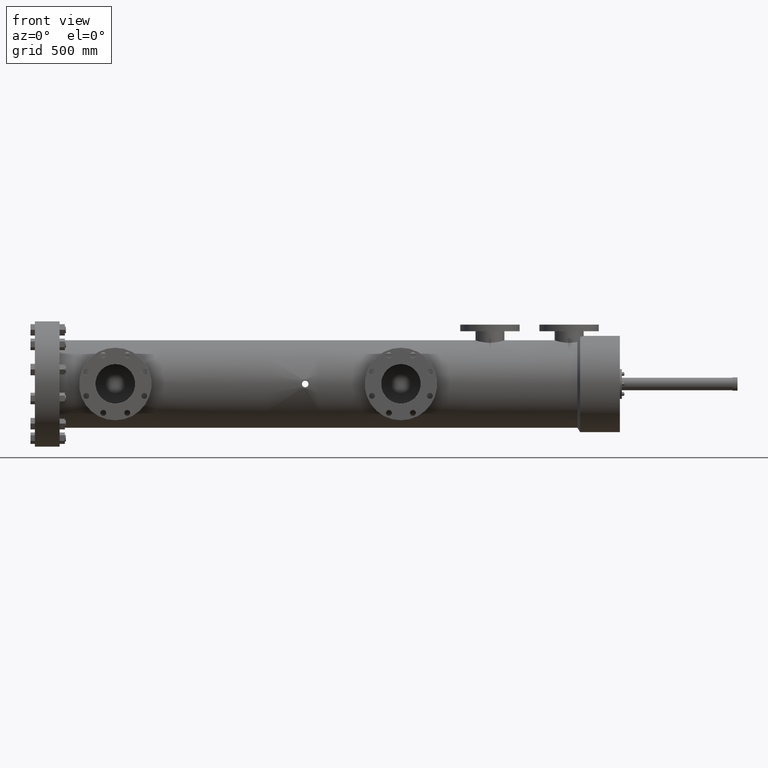
[diagram: clean part render]
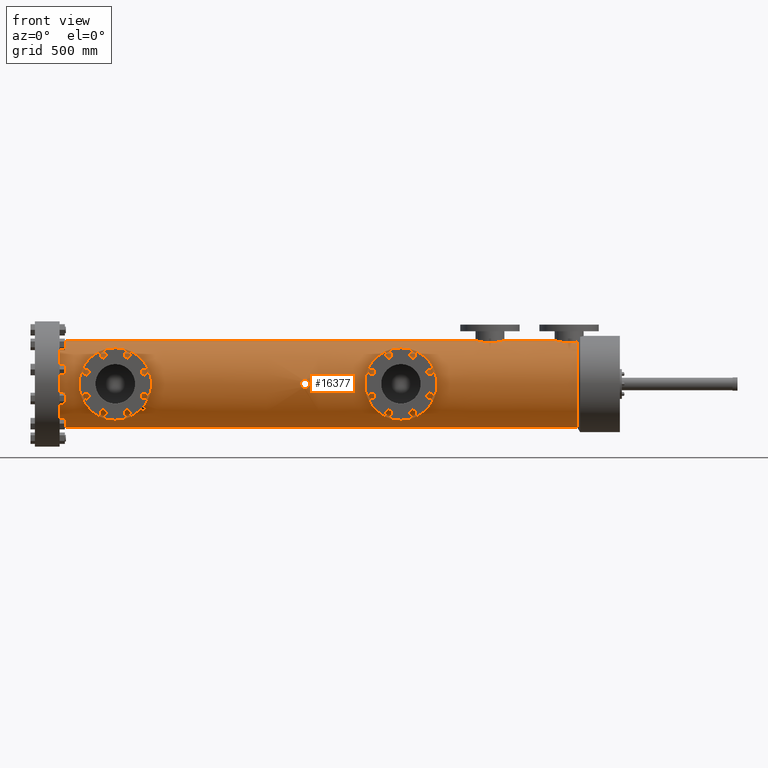
[diagram: same view with one face highlighted and labeled with its STEP entity id]
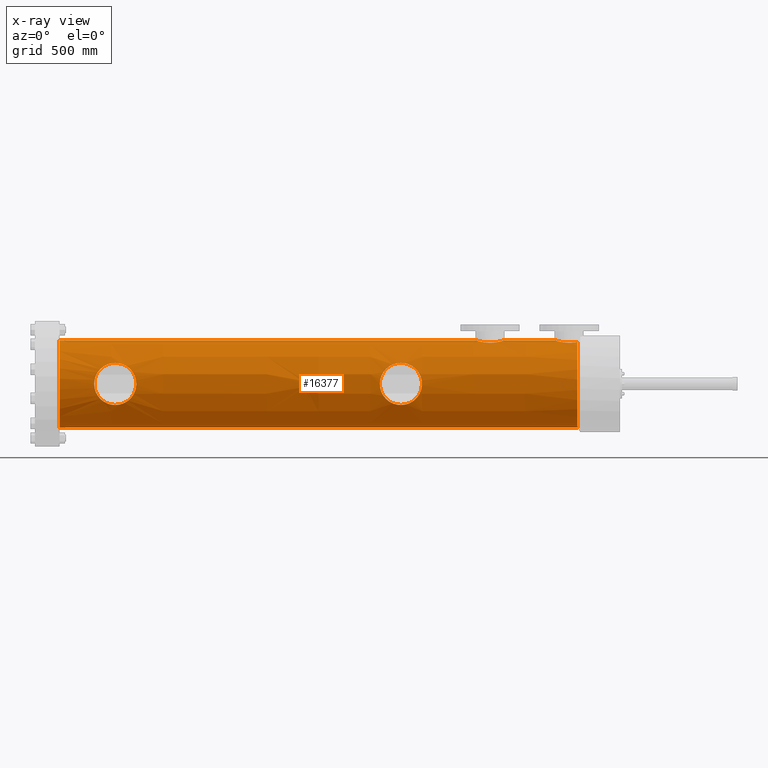
[diagram: x-ray of the same camera — body ghosted, the highlighted face saturated]
A machine part, front view. The second image highlights one B-rep face of the part: STEP entity #16377.
The next image is the same camera in x-ray: the body ghosted, the highlighted face saturated — about 0% of this face is hidden behind the body in this view.
In plain terms, the highlighted conical surface has half-angle 0.002 deg.
Its self-contained STEP definition (entity closure, byte-faithful):
#18 = B_SPLINE_CURVE_WITH_KNOTS ( 'NONE', 3,
 ( #7363, #5635, #25173, #21110, #9313, #21366, #3348, #11288, #21019, #5460, #19205, #13343, #13431, #25092, #21199, #1700, #23003, #15378, #23311, #17293, #11538, #25256, #3684, #1358, #9390, #11201, #23148, #11372, #15293, #3595, #8284, #5086, #13231, #21025, #4092, #7750, #24640, #20800, #12561, #16504, #8383, #10420, #675, #20322, #2823, #6580, #839, #926, #18249, #16248, #596, #10330, #22146, #24258, #20497, #24074, #4522, #22385, #6667, #6498, #14613, #4684, #12474, #8722, #18426, #4597, #12314, #14277, #2559, #20236, #2642, #16336, #18343, #8645, #8476, #18511, #14533, #4768, #12643, #10671, #8558, #22482, #22304, #6754, #10501, #762 ),
 .UNSPECIFIED., .F., .F.,
 ( 4, 2, 2, 2, 2, 2, 2, 2, 2, 2, 2, 2, 2, 2, 2, 2, 2, 2, 2, 2, 2, 2, 2, 2, 2, 2, 2, 2, 2, 2, 2, 2, 2, 2, 2, 2, 2, 2, 2, 2, 2, 2, 4 ),
 ( 0.06205942949653990570, 0.07022248148616078156, 0.07838553347578165742, 0.08654858546540253328, 0.08858934846280035191, 0.09063011146019817055, 0.09471163745498394071, 0.1028746894445656951, 0.1110377414341474495, 0.1151192674289383266, 0.1192007934237291900, 0.1273638454133036446, 0.1355268974028780715, 0.1436899493924524984, 0.1477714753872397258, 0.1518530013820269531, 0.1600160533715958289, 0.1681791053611647602, 0.1722606313559493785, 0.1763421573507340245, 0.1845052093403051763, 0.1926682613298763003, 0.1967497873246618623, 0.2008313133194474243, 0.2089943653090176046, 0.2171574172985877849, 0.2212389432933746236, 0.2253204692881614624, 0.2334835212777392477, 0.2416465732673169775, 0.2498096252568947073, 0.2538911512516868751, 0.2579726772464790430, 0.2661357292360553850, 0.2742987812256316715, 0.2783803072204195650, 0.2824618332152074029, 0.2906248852047830789, 0.2987879371943588658, 0.3028694631891464817, 0.3069509891839342086, 0.3151140411735097735, 0.3232770931630853384 ),
 .UNSPECIFIED. ) ;
#143 = CARTESIAN_POINT ( 'NONE',  ( 735.1341999848519890, 177.5585945492454982, -0.5530400933325501089 ) ) ;
#150 = CARTESIAN_POINT ( 'NONE',  ( 705.4756903385357418, 178.2193980290125523, 2.929906969617070978 ) ) ;
#161 = CARTESIAN_POINT ( 'NONE',  ( 749.9595084532793408, 178.3564987355675271, 3.195533195535784632 ) ) ;
#227 = CARTESIAN_POINT ( 'NONE',  ( 735.4680749123335772, 177.5717558836482226, -0.6924445274903352487 ) ) ;
#248 = EDGE_CURVE ( 'NONE', #21849, #24194, #23339, .T. ) ;
#307 = CARTESIAN_POINT ( 'NONE',  ( 735.2507201212582686, 177.5650659405873171, -0.6254748462666855913 ) ) ;
#326 = CARTESIAN_POINT ( 'NONE',  ( 747.2246454284482979, 177.6993480273789316, -1.466781179885928488 ) ) ;
#350 = CARTESIAN_POINT ( 'NONE',  ( 736.0186701154657385, 177.5562046810374568, 0.5240503062266418377 ) ) ;
#404 = CARTESIAN_POINT ( 'NONE',  ( 747.9590771359887640, 177.9872904123941453, 2.406837257923049034 ) ) ;
#429 = CARTESIAN_POINT ( 'NONE',  ( 736.2556140358097991, 177.5354594437773414, 0.04579037135462079439 ) ) ;
#473 = CARTESIAN_POINT ( 'NONE',  ( 734.8630106186565172, 177.5356116293899049, -0.04504715367966138223 ) ) ;
#479 = CARTESIAN_POINT ( 'NONE',  ( 704.8018130231075702, 178.0387411181433777, -2.530845458161948169 ) ) ;
#492 = CARTESIAN_POINT ( 'NONE',  ( 747.0776867682645843, 177.6334701202750637, 1.141504358679855669 ) ) ;
#571 = CARTESIAN_POINT ( 'NONE',  ( 703.5588965406944908, 177.5364643376629203, 0.1093231030539379006 ) ) ;
#583 = CARTESIAN_POINT ( 'NONE',  ( 746.8686547776121643, 177.5350929550004935, -0.1020066621350609187 ) ) ;
#596 = CARTESIAN_POINT ( 'NONE',  ( 753.1523654677869217, 177.5874380251615889, 0.8383887125399056561 ) ) ;
#604 = CARTESIAN_POINT ( 'NONE',  ( 736.1508065953154301, 177.5456760041140853, 0.3682846103616267963 ) ) ;
#650 = CARTESIAN_POINT ( 'NONE',  ( 706.7018837094072978, 178.3584685808786503, -3.196510973075751050 ) ) ;
#659 = CARTESIAN_POINT ( 'NONE',  ( 747.2052089636330265, 177.6907732016455839, 1.428506058222580144 ) ) ;
#675 = CARTESIAN_POINT ( 'NONE',  ( 753.2624814976533116, 177.5349611381887485, -0.1064164200246459357 ) ) ;
#726 = CARTESIAN_POINT ( 'NONE',  ( 734.9669073653723217, 177.5457237163287516, 0.3685213997995286928 ) ) ;
#727 = DIRECTION ( 'NONE',  ( 0.9999999995803368069, 3.547940017089211670E-21, 2.897112881493199885E-05 ) ) ;
#733 = CARTESIAN_POINT ( 'NONE',  ( 704.2189663258398014, 177.8287878009984979, -1.948271625740539026 ) ) ;
#744 = CARTESIAN_POINT ( 'NONE',  ( 748.9998742809506211, 178.2602713395702949, -3.014087606869289893 ) ) ;
#762 = CARTESIAN_POINT ( 'NONE',  ( 750.0656234997047704, 178.3572213202817522, 3.196850393700750192 ) ) ;
#795 = CARTESIAN_POINT ( 'NONE',  ( 709.7961291517235622, 177.6102485281807617, 0.9889049399482929825 ) ) ;
#839 = CARTESIAN_POINT ( 'NONE',  ( 753.2516985945263741, 177.5401585005859886, 0.2675894814960573798 ) ) ;
#851 = CARTESIAN_POINT ( 'NONE',  ( 736.1120436604511497, 177.5490366778836346, -0.4242873028902793275 ) ) ;
#883 = CARTESIAN_POINT ( 'NONE',  ( 709.9471654438281121, 177.5387859810082603, -0.2123561122903965537 ) ) ;
#914 = CARTESIAN_POINT ( 'NONE',  ( 748.9256332176139495, 178.2465649212758763, -2.987146938845846478 ) ) ;
#926 = CARTESIAN_POINT ( 'NONE',  ( 753.2357101439614553, 177.5478426015120590, 0.4262721086197519549 ) ) ;
#935 = CARTESIAN_POINT ( 'NONE',  ( 735.9839227058560027, 177.5586178167785363, -0.5540006797627210489 ) ) ;
#967 = CARTESIAN_POINT ( 'NONE',  ( 709.7525807941212861, 177.6303382060524143, 1.113010567921145055 ) ) ;
#1004 = CARTESIAN_POINT ( 'NONE',  ( 774.7296643966748206, 182.1314391311141492, 6.308472898951182906 ) ) ;
#1045 = CARTESIAN_POINT ( 'NONE',  ( 709.8423685014735156, 177.5887013584342355, 0.8383783953816701384 ) ) ;
#1070 = ORIENTED_EDGE ( 'NONE', *, *, #15634, .F. ) ;
#1135 = CARTESIAN_POINT ( 'NONE',  ( 709.8267504370453480, 177.5959799174460727, -0.8892897898792334610 ) ) ;
#1170 = CARTESIAN_POINT ( 'NONE',  ( 776.1806753505389906, 182.0544850719393821, 6.283231717459301535 ) ) ;
#1218 = CARTESIAN_POINT ( 'NONE',  ( 708.9418834701739343, 177.9607682010692429, 2.334691800919261873 ) ) ;
#1223 = CARTESIAN_POINT ( 'NONE',  ( 765.0161206639389775, 182.5076797407293157, 6.417911770996098220 ) ) ;
#1252 = CARTESIAN_POINT ( 'NONE',  ( 774.1373455197190196, 182.4929557044423518, 6.413624675495559480 ) ) ;
#1299 = CARTESIAN_POINT ( 'NONE',  ( 708.4521424683772466, 178.1158333314093056, 2.710052411253550897 ) ) ;
#1306 = CARTESIAN_POINT ( 'NONE',  ( 762.6550333441012981, 182.1637198031623086, 6.318415463902363527 ) ) ;
#1332 = CARTESIAN_POINT ( 'NONE',  ( 776.0589334049611807, 182.0222590782635166, 6.272335071857741973 ) ) ;
#1358 = CARTESIAN_POINT ( 'NONE',  ( 752.3965447649493399, 177.9069604585910724, -2.190260427002467924 ) ) ;
#1388 = CARTESIAN_POINT ( 'NONE',  ( 764.7567201418304421, 182.3173587892474643, 6.365027477291581803 ) ) ;
#1469 = CARTESIAN_POINT ( 'NONE',  ( 709.4660105105064076, 177.7569934584373925, 1.698311803217639415 ) ) ;
#1475 = CARTESIAN_POINT ( 'NONE',  ( 765.1671188315577865, 182.6583030734166755, 6.454233041736012311 ) ) ;
#1558 = CARTESIAN_POINT ( 'NONE',  ( 763.3123318991008546, 181.9808914092728003, 6.257675463139608318 ) ) ;
#1700 = CARTESIAN_POINT ( 'NONE',  ( 751.6712046691008027, 178.1398320226253418, -2.766336281441698297 ) ) ;
#1730 = CARTESIAN_POINT ( 'NONE',  ( 761.8204454434107902, 182.8210742606892723, 6.490800737251106511 ) ) ;
#1953 = LINE ( 'NONE', #2877, #22239 ) ;
#2028 = CARTESIAN_POINT ( 'NONE',  ( 703.9191305440040196, 177.7026058265962263, 1.475432579321970472 ) ) ;
#2106 = CARTESIAN_POINT ( 'NONE',  ( 734.8973532945746001, 177.5391512353583892, -0.2240387213797554178 ) ) ;
#2122 = CARTESIAN_POINT ( 'NONE',  ( 749.3290695788857647, 178.3115933064912042, 3.112616919727682507 ) ) ;
#2188 = CARTESIAN_POINT ( 'NONE',  ( 734.9549174051866203, 177.5446371786171085, -0.3485285977703945770 ) ) ;
#2204 = CARTESIAN_POINT ( 'NONE',  ( 749.7729289182519778, 178.3499164111607911, 3.183535556725524795 ) ) ;
#2225 = CARTESIAN_POINT ( 'NONE',  ( 736.2556414614490450, 177.5354565586089564, -0.02247524736063220493 ) ) ;
#2275 = CARTESIAN_POINT ( 'NONE',  ( 704.8079405846976897, 178.0410250389695648, 2.537111551423473887 ) ) ;
#2283 = CARTESIAN_POINT ( 'NONE',  ( 748.6430873481593835, 178.1856621166226375, 2.863389132988249042 ) ) ;
#2314 = EDGE_CURVE ( 'NONE', #9658, #23668, #15111, .T. ) ;
#2361 = CARTESIAN_POINT ( 'NONE',  ( 705.7147788543959450, 178.2661291361761187, -3.022779353287219362 ) ) ;
#2374 = CARTESIAN_POINT ( 'NONE',  ( 747.0392551851969074, 177.6157474835006553, -1.035316455012976533 ) ) ;
#2377 = LINE ( 'NONE', #16671, #18656 ) ;
#2378 = FACE_OUTER_BOUND ( 'NONE', #7998, .T. ) ;
#2397 = CARTESIAN_POINT ( 'NONE',  ( 735.8678701027656643, 177.5651038388807876, 0.6262170441610025451 ) ) ;
#2441 = CARTESIAN_POINT ( 'NONE',  ( 704.6417125539729795, 177.9857699031036304, -2.398735528460076427 ) ) ;
#2445 = CARTESIAN_POINT ( 'NONE',  ( 776.8291199031046972, 184.1613553879231517, 0.0000000000000000000 ) ) ;
#2451 = CARTESIAN_POINT ( 'NONE',  ( 746.8688955865000025, 177.5352091275813393, 0.1092932664711406404 ) ) ;
#2463 = DIRECTION ( 'NONE',  ( 0.0000000000000000000, 0.0000000000000000000, 1.000000000000000000 ) ) ;
#2481 = CARTESIAN_POINT ( 'NONE',  ( 736.2545389198114663, 177.5355728349972821, -0.04530213607507191376 ) ) ;
#2523 = CARTESIAN_POINT ( 'NONE',  ( 735.1345272468856820, 177.5586158417333422, 0.5532961899178879817 ) ) ;
#2528 = CARTESIAN_POINT ( 'NONE',  ( 703.6422504014349215, 177.5763037193300988, -0.7334667767924941684 ) ) ;
#2536 = CARTESIAN_POINT ( 'NONE',  ( 747.2009537299983322, 177.6888905366582776, -1.419948249123192507 ) ) ;
#2559 = CARTESIAN_POINT ( 'NONE',  ( 751.9344940759544897, 178.0642539692748301, 2.595737459446096018 ) ) ;
#2570 = CARTESIAN_POINT ( 'NONE',  ( 736.1938131265496850, 177.5416810635879301, 0.2878383494447133706 ) ) ;
#2611 = CARTESIAN_POINT ( 'NONE',  ( 735.5357792701157678, 177.5722245048890215, 0.6968503937008416749 ) ) ;
#2618 = CARTESIAN_POINT ( 'NONE',  ( 703.5642423165469381, 177.5390485868887822, 0.2148763382202257821 ) ) ;
#2629 = CARTESIAN_POINT ( 'NONE',  ( 746.9117793069652862, 177.5557936124648961, -0.5253397924203457858 ) ) ;
#2642 = CARTESIAN_POINT ( 'NONE',  ( 751.7621415462314189, 178.1144585730787355, 2.710052923059273589 ) ) ;
#2712 = CARTESIAN_POINT ( 'NONE',  ( 704.5648831633241116, 177.9590533698487036, -2.328778306361922290 ) ) ;
#2723 = CARTESIAN_POINT ( 'NONE',  ( 749.7986553565891654, 178.3513323318755965, -3.186124733608966864 ) ) ;
#2745 = CARTESIAN_POINT ( 'NONE',  ( 735.6728041515418681, 177.5712719449730912, -0.6878366159302067295 ) ) ;
#2775 = CARTESIAN_POINT ( 'NONE',  ( 707.2834809493075454, 178.3355761810262834, -3.154718758125619527 ) ) ;
#2823 = CARTESIAN_POINT ( 'NONE',  ( 753.2611294905653949, 177.5356137599334829, 0.1071225114329676098 ) ) ;
#2834 = B_SPLINE_CURVE_WITH_KNOTS ( 'NONE', 3,
 ( #16039, #4319, #227, #18037, #23623, #7941, #8095, #4234, #307, #9879, #13997, #8267, #143, #13910, #21862, #23785, #17954, #17791, #2188, #12021, #13827, #2106, #10120, #6202, #12098, #473, #15784, #6046, #14080, #6286, #22024, #14583, #8437, #12445, #16558, #22357, #726, #4826, #18561, #4739, #6544, #2523, #6459, #8528, #16473, #18482, #18212, #20115, #8356, #16301, #22195, #14416, #2611, #20372 ),
 .UNSPECIFIED., .F., .F.,
 ( 4, 2, 2, 2, 2, 2, 2, 2, 2, 2, 2, 2, 2, 2, 2, 2, 2, 2, 2, 2, 2, 2, 2, 2, 2, 2, 4 ),
 ( 0.09708609570223443452, 0.1005462963105232949, 0.1022763966146677528, 0.1040064969188121968, 0.1057365972229566548, 0.1074666975271011127, 0.1091967978312455567, 0.1109268981353900146, 0.1143870987436715059, 0.1161171990478152005, 0.1178472993519588952, 0.1213074999602462845, 0.1230376002643899652, 0.1247677005685336599, 0.1282279011768210630, 0.1299580014809647577, 0.1316881017851084246, 0.1334182020892521192, 0.1351483023933958139, 0.1386085030016890596, 0.1403386033058395266, 0.1420687036099899658, 0.1455289042182820458, 0.1472590045224281274, 0.1489891048265742368, 0.1507192051307203184, 0.1524493054348664001 ),
 .UNSPECIFIED. ) ;
#2862 = CARTESIAN_POINT ( 'NONE',  ( 707.7173783183221758, 178.2795132199276793, -3.048864617300937496 ) ) ;
#2877 = CARTESIAN_POINT ( 'NONE',  ( 698.3182505649875793, 184.1613553879231517, 6.624798784731736667 ) ) ;
#2940 = CARTESIAN_POINT ( 'NONE',  ( 709.9524700872098038, 177.5362213844510677, 0.05355495219592452949 ) ) ;
#3023 = CARTESIAN_POINT ( 'NONE',  ( 706.9692093622828679, 178.3556660366711526, -3.191456577862653798 ) ) ;
#3147 = CARTESIAN_POINT ( 'NONE',  ( 775.6126103953254187, 181.9665300224444877, 6.253029302702990400 ) ) ;
#3191 = CARTESIAN_POINT ( 'NONE',  ( 707.6442719416002092, 178.2911833072103320, 3.071306174803646538 ) ) ;
#3200 = CARTESIAN_POINT ( 'NONE',  ( 765.7047988170680810, 183.6595380018713115, 6.608101021725047097 ) ) ;
#3235 = CARTESIAN_POINT ( 'NONE',  ( 776.1077686118808288, 182.0341061005258325, 6.276371558404303386 ) ) ;
#3282 = CARTESIAN_POINT ( 'NONE',  ( 707.7950708496318839, 178.2670915448865401, 3.024973151396613158 ) ) ;
#3289 = CARTESIAN_POINT ( 'NONE',  ( 762.5577716492458649, 182.2109206979327496, 6.333146101192833832 ) ) ;
#3348 = CARTESIAN_POINT ( 'NONE',  ( 750.9013287291160168, 178.2981833830158109, -3.087486421233646361 ) ) ;
#3378 = CARTESIAN_POINT ( 'NONE',  ( 764.6646112036992236, 182.2610711671234469, 6.348442422252188244 ) ) ;
#3454 = CARTESIAN_POINT ( 'NONE',  ( 708.7069946404122902, 178.0397269270778793, 2.534276566629833027 ) ) ;
#3463 = CARTESIAN_POINT ( 'NONE',  ( 764.7262044601411617, 182.2980194581999740, 6.359387090849689450 ) ) ;
#3540 = CARTESIAN_POINT ( 'NONE',  ( 763.2044423274406881, 181.9961205395200921, 6.262959339377854207 ) ) ;
#3595 = CARTESIAN_POINT ( 'NONE',  ( 752.8282784410603199, 177.7332376528136706, -1.609446649997355427 ) ) ;
#3617 = VERTEX_POINT ( 'NONE', #13521 ) ;
#3633 = AXIS2_PLACEMENT_3D ( 'NONE', #18421, #20055, #2463 ) ;
#3676 = CARTESIAN_POINT ( 'NONE',  ( 706.7026191735011480, 178.3586555898992572, 3.196850393700745308 ) ) ;
#3684 = CARTESIAN_POINT ( 'NONE',  ( 752.2509095782260147, 177.9597683881183059, -2.335585459340998149 ) ) ;
#3712 = CARTESIAN_POINT ( 'NONE',  ( 761.6642957597337045, 183.0600218052861123, 6.534791002482985611 ) ) ;
#3908 = FACE_BOUND ( 'NONE', #7091, .T. ) ;
#3920 = CARTESIAN_POINT ( 'NONE',  ( 704.2249173474060626, 177.8311732059338226, 1.956011593000425153 ) ) ;
#3954 = CARTESIAN_POINT ( 'NONE',  ( 761.7012979320777504, 182.9986610462926535, 6.524113851998041724 ) ) ;
#3999 = CARTESIAN_POINT ( 'NONE',  ( 703.8499140409657002, 177.6719050322045348, 1.333961384302583486 ) ) ;
#4081 = CARTESIAN_POINT ( 'NONE',  ( 705.0609626035130759, 178.1168608631638790, 2.712661339510225034 ) ) ;
#4092 = CARTESIAN_POINT ( 'NONE',  ( 753.0900447316583950, 177.6164720326254098, -1.041126847143630130 ) ) ;
#4110 = CARTESIAN_POINT ( 'NONE',  ( 736.2111951876607918, 177.5399904780317968, 0.2459115268597847626 ) ) ;
#4234 = CARTESIAN_POINT ( 'NONE',  ( 735.2712686713157382, 177.5659957105497426, -0.6351783182514815218 ) ) ;
#4239 = CARTESIAN_POINT ( 'NONE',  ( 706.3297668383410155, 178.3440341685739270, 3.170166658697828765 ) ) ;
#4251 = CARTESIAN_POINT ( 'NONE',  ( 746.8968013936294028, 177.5486297670503575, 0.4257438696669798572 ) ) ;
#4275 = CARTESIAN_POINT ( 'NONE',  ( 736.1626320920054241, 177.5446033802511749, 0.3485460920719620215 ) ) ;
#4319 = CARTESIAN_POINT ( 'NONE',  ( 735.5133193497480306, 177.5722251592070506, -0.6968503937008510007 ) ) ;
#4327 = CARTESIAN_POINT ( 'NONE',  ( 704.9276740861332655, 178.0777430189484960, -2.623196884245925453 ) ) ;
#4336 = CARTESIAN_POINT ( 'NONE',  ( 748.5965411225458865, 178.1743986053286619, 2.839779692635541419 ) ) ;
#4391 = ORIENTED_EDGE ( 'NONE', *, *, #8411, .F. ) ;
#4406 = CARTESIAN_POINT ( 'NONE',  ( 705.7902451123762830, 178.2789829734168450, -3.047720300215727374 ) ) ;
#4415 = CARTESIAN_POINT ( 'NONE',  ( 747.0746244527643967, 177.6320659782358291, -1.133426365833222427 ) ) ;
#4456 = ORIENTED_EDGE ( 'NONE', *, *, #14741, .T. ) ;
#4492 = CARTESIAN_POINT ( 'NONE',  ( 704.1576686956392450, 177.8039198323270114, -1.865779596487641800 ) ) ;
#4506 = CARTESIAN_POINT ( 'NONE',  ( 747.7281403992794822, 177.9046554019737698, -2.183273055055967582 ) ) ;
#4522 = CARTESIAN_POINT ( 'NONE',  ( 752.9279812875388416, 177.6898643329994627, 1.427418311902168613 ) ) ;
#4531 = CARTESIAN_POINT ( 'NONE',  ( 736.0831869152940499, 177.5513894505142218, -0.4594754249874019592 ) ) ;
#4571 = CARTESIAN_POINT ( 'NONE',  ( 703.6680641664951281, 177.5884983073343051, -0.8353217278475558727 ) ) ;
#4580 = CARTESIAN_POINT ( 'NONE',  ( 748.6385572554142982, 178.1850567450725578, -2.862532314990842153 ) ) ;
#4597 = CARTESIAN_POINT ( 'NONE',  ( 752.2518814840201458, 177.9594283471146809, 2.334693964248997222 ) ) ;
#4612 = ORIENTED_EDGE ( 'NONE', *, *, #11366, .T. ) ;
#4641 = CARTESIAN_POINT ( 'NONE',  ( 709.8411733747065000, 177.5892161177946491, -0.8378922682153693291 ) ) ;
#4659 = CARTESIAN_POINT ( 'NONE',  ( 735.5587819821047333, 177.5722238347580344, -0.6968503937008417859 ) ) ;
#4660 = CARTESIAN_POINT ( 'NONE',  ( 706.6483124079584286, 178.3577270024591712, -3.195161137626003622 ) ) ;
#4668 = CARTESIAN_POINT ( 'NONE',  ( 749.9583183613780193, 178.3562948127567722, -3.195161314747569481 ) ) ;
#4684 = CARTESIAN_POINT ( 'NONE',  ( 752.5010143278235546, 177.8669830945371189, 2.071568018938581002 ) ) ;
#4723 = CARTESIAN_POINT ( 'NONE',  ( 708.4494078880569532, 178.1170026719241264, -2.713221251822358848 ) ) ;
#4739 = CARTESIAN_POINT ( 'NONE',  ( 735.0820865419577785, 177.5550361848598584, 0.5088008616157775332 ) ) ;
#4757 = CARTESIAN_POINT ( 'NONE',  ( 750.0656234997047704, 178.3572213202817522, -3.196850393700750192 ) ) ;
#4768 = CARTESIAN_POINT ( 'NONE',  ( 750.9542697650448417, 178.2897675576956829, 3.071306759483990678 ) ) ;
#4812 = CARTESIAN_POINT ( 'NONE',  ( 707.4894124589901594, 178.3133133936000263, -3.113268008725507574 ) ) ;
#4826 = CARTESIAN_POINT ( 'NONE',  ( 735.0050653012065141, 177.5490636490353893, 0.4255475999975533163 ) ) ;
#4850 = CARTESIAN_POINT ( 'NONE',  ( 775.4356403017218327, 181.9702571331048375, 6.254331129545118273 ) ) ;
#4979 = EDGE_CURVE ( 'NONE', #24194, #21849, #18, .T. ) ;
#4980 = CARTESIAN_POINT ( 'NONE',  ( 708.0858103746983261, 178.2088469064706828, -2.908845242142973575 ) ) ;
#5010 = CARTESIAN_POINT ( 'NONE',  ( 749.2268850467748962, 178.2978127888005702, -3.086681793579553190 ) ) ;
#5058 = CARTESIAN_POINT ( 'NONE',  ( 709.2895349869388610, 177.8297385175063994, 1.951877775525876269 ) ) ;
#5086 = CARTESIAN_POINT ( 'NONE',  ( 752.9283980204312456, 177.6896812664153344, -1.426616133570400402 ) ) ;
#5094 = CARTESIAN_POINT ( 'NONE',  ( 775.4610234098028059, 181.9689068820570697, 6.253858497481644463 ) ) ;
#5149 = CARTESIAN_POINT ( 'NONE',  ( 763.2761536944070713, 181.9853931890529282, 6.259242580310053761 ) ) ;
#5180 = CARTESIAN_POINT ( 'NONE',  ( 773.7415207943350879, 182.9341175000808448, 6.512939006640436901 ) ) ;
#5229 = CARTESIAN_POINT ( 'NONE',  ( 709.1910101290186503, 177.8683056590631111, 2.071573043075497278 ) ) ;
#5235 = CARTESIAN_POINT ( 'NONE',  ( 763.8531904981017533, 181.9807017180546040, 6.257696832329146197 ) ) ;
#5315 = CARTESIAN_POINT ( 'NONE',  ( 764.1718212446774032, 182.0516576522327910, 6.281921602755545564 ) ) ;
#5350 = CARTESIAN_POINT ( 'NONE',  ( 773.3682218798376198, 184.0612227775363863, 6.626973067119167560 ) ) ;
#5404 = CARTESIAN_POINT ( 'NONE',  ( 765.4690892136520688, 183.0578851784887320, 6.535341885532258033 ) ) ;
#5460 = CARTESIAN_POINT ( 'NONE',  ( 751.1026757464541106, 178.2653196434018810, -3.024082336497373902 ) ) ;
#5493 = CARTESIAN_POINT ( 'NONE',  ( 763.1688471701794469, 182.0023520905970429, 6.265111061136511950 ) ) ;
#5579 = B_SPLINE_CURVE_WITH_KNOTS ( 'NONE', 3,
 ( #8391, #14119, #19896, #6415, #6332, #10079, #19983, #2397, #14287, #22151, #23997, #350, #8055, #6242, #12240, #604, #4275, #11979, #2570, #4110, #17834, #13954, #8226, #6086, #429, #2225, #2481, #9997, #23745, #23827, #12058, #17996, #14040, #21981, #10162, #23919, #851, #4531, #20329, #14376, #935, #10681, #24430, #16343, #12652, #6506, #24857, #2745, #12568, #8651, #15058, #22397 ),
 .UNSPECIFIED., .F., .F.,
 ( 4, 2, 2, 2, 2, 2, 2, 2, 2, 2, 2, 2, 2, 2, 2, 2, 2, 2, 2, 2, 2, 2, 2, 2, 2, 4 ),
 ( 0.04170707818796439564, 0.04516826678260573574, 0.04689886107993160302, 0.04862945537725747724, 0.05209064397190920487, 0.05382123826923066595, 0.05555183256655212010, 0.05901302116118738866, 0.06074361545850794769, 0.06247420975582849978, 0.06420480405314907268, 0.06593539835046961783, 0.06939658694511068038, 0.07112718124243122553, 0.07285777553975174292, 0.07631896413439487326, 0.07804955843171650087, 0.07978015272903812849, 0.08151074702635974223, 0.08324134132368135597, 0.08670252991832445855, 0.08843312421564600290, 0.09016371851296756113, 0.09362490710760097701, 0.09535550140491769189, 0.09708609570223443452 ),
 .UNSPECIFIED. ) ;
#5635 = CARTESIAN_POINT ( 'NONE',  ( 750.1730049964182854, 178.3572177686462226, -3.196850393700751081 ) ) ;
#5664 = CARTESIAN_POINT ( 'NONE',  ( 761.3874386508995258, 183.8729874699923528, 6.620447077047069584 ) ) ;
#5666 = CARTESIAN_POINT ( 'NONE',  ( 776.8291199031046972, 184.1613553879231517, -6.627073333241657593 ) ) ;
#5888 = CARTESIAN_POINT ( 'NONE',  ( 705.3330733869881897, 178.1870501153535997, 2.863382082404271056 ) ) ;
#5970 = CARTESIAN_POINT ( 'NONE',  ( 703.7676964613690416, 177.6347481833703910, 1.141529285805922500 ) ) ;
#5978 = ORIENTED_EDGE ( 'NONE', *, *, #11991, .T. ) ;
#6044 = CONICAL_SURFACE ( 'NONE', #18902, 6.624798784731736667, 2.897112881898470592E-05 ) ;
#6046 = CARTESIAN_POINT ( 'NONE',  ( 734.8619620625746620, 177.5355010956268700, 0.04592313739975757009 ) ) ;
#6054 = CARTESIAN_POINT ( 'NONE',  ( 704.0477465183284949, 177.7582199647510492, 1.702327761434381914 ) ) ;
#6086 = CARTESIAN_POINT ( 'NONE',  ( 736.2511804442528955, 177.5359303422088715, 0.09101605829283684890 ) ) ;
#6087 = B_SPLINE_CURVE_WITH_KNOTS ( 'NONE', 3,
 ( #16661, #12977, #6835, #24832, #20743, #12896, #22727, #15027, #1170, #3235, #1332, #6915, #14856, #24586, #3147, #12719, #12802, #5094, #4850, #18841, #7088, #9039, #22815, #9123, #16589, #1004, #18928, #14690, #11000, #22897, #8885, #24747, #11095, #1252, #14941, #18586, #20583, #16919, #5180, #7165, #8797, #20911, #22554, #10751, #24493, #21343, #25229, #24990, #5350, #17188 ),
 .UNSPECIFIED., .F., .F.,
 ( 4, 2, 2, 2, 2, 2, 2, 2, 2, 2, 2, 2, 2, 2, 2, 2, 2, 2, 2, 2, 2, 2, 2, 2, 4 ),
 ( 2.423432997694332757E-05, 0.007655481755091917383, 0.01528672918020689171, 0.01719454103649081453, 0.01910235289277473561, 0.02291797660535197650, 0.03054922403050699953, 0.03436484774308973950, 0.03627265959938109907, 0.03818047145567246559, 0.04581171888083791777, 0.05344296630600337689, 0.05535077816229452136, 0.05725859001858566583, 0.06107421373116690699, 0.06870546115633061057, 0.07252108486890818106, 0.07633670858148575156, 0.08396795600664855308, 0.09159920343181135460, 0.09923045085697415613, 0.1068616982821369576, 0.1106773219947181919, 0.1144929457072994261, 0.1221241931324592717 ),
 .UNSPECIFIED. ) ;
#6133 = CARTESIAN_POINT ( 'NONE',  ( 706.5430032351783893, 178.3548279676584798, 3.189884111888313445 ) ) ;
#6202 = CARTESIAN_POINT ( 'NONE',  ( 734.8708628903676754, 177.5364324716290412, -0.1135231147686501796 ) ) ;
#6221 = CARTESIAN_POINT ( 'NONE',  ( 747.9909301408279134, 177.9977443150457361, -2.432733620831599719 ) ) ;
#6242 = CARTESIAN_POINT ( 'NONE',  ( 736.0837000264948529, 177.5514106010082003, 0.4605687512119331917 ) ) ;
#6286 = CARTESIAN_POINT ( 'NONE',  ( 734.8798570805065538, 177.5373601373202632, 0.1587086232202948033 ) ) ;
#6292 = CARTESIAN_POINT ( 'NONE',  ( 703.5586538915762276, 177.5363472551349560, -0.1019809591331369975 ) ) ;
#6306 = CARTESIAN_POINT ( 'NONE',  ( 747.9517115684809596, 177.9844235565768997, -2.398734723745473030 ) ) ;
#6332 = CARTESIAN_POINT ( 'NONE',  ( 735.7390456502307643, 177.5697896697427041, 0.6735208399069007035 ) ) ;
#6383 = CARTESIAN_POINT ( 'NONE',  ( 705.3285356207543373, 178.1864427496171572, -2.862521435988757634 ) ) ;
#6391 = CARTESIAN_POINT ( 'NONE',  ( 747.2291284629179700, 177.7013178884335218, 1.475428448707206686 ) ) ;
#6415 = CARTESIAN_POINT ( 'NONE',  ( 735.7169386919399585, 177.5703590710555773, 0.6790458050464998063 ) ) ;
#6459 = CARTESIAN_POINT ( 'NONE',  ( 735.1529118294623686, 177.5597742908165344, 0.5669100136776373811 ) ) ;
#6468 = CARTESIAN_POINT ( 'NONE',  ( 705.4222802847873481, 178.2082252013652806, -2.907398270131638096 ) ) ;
#6480 = CARTESIAN_POINT ( 'NONE',  ( 748.3672186095188863, 178.1144483128614411, -2.710370635670634964 ) ) ;
#6498 = CARTESIAN_POINT ( 'NONE',  ( 752.6610657787568925, 177.8034817297998416, 1.869261858969847534 ) ) ;
#6506 = CARTESIAN_POINT ( 'NONE',  ( 735.7833175490113717, 177.5685272832947135, -0.6612615478511584266 ) ) ;
#6544 = CARTESIAN_POINT ( 'NONE',  ( 735.0989899602525384, 177.5562382432819390, 0.5241374350059795351 ) ) ;
#6552 = CARTESIAN_POINT ( 'NONE',  ( 704.4181271667913506, 177.9059793531463640, -2.183259291906119337 ) ) ;
#6565 = CARTESIAN_POINT ( 'NONE',  ( 746.9780707681886724, 177.5872367365540470, -0.8353463157190944566 ) ) ;
#6580 = CARTESIAN_POINT ( 'NONE',  ( 753.2557317959729062, 177.5382154639346481, 0.2143427819299768000 ) ) ;
#6618 = CARTESIAN_POINT ( 'NONE',  ( 709.9524814883757244, 177.5362158826758048, -0.1064264282193303490 ) ) ;
#6641 = CARTESIAN_POINT ( 'NONE',  ( 706.0192025764577011, 178.3130379776404766, -3.112661291894997184 ) ) ;
#6667 = CARTESIAN_POINT ( 'NONE',  ( 752.7760054719331038, 177.7556976235002537, 1.698319783171053254 ) ) ;
#6708 = CARTESIAN_POINT ( 'NONE',  ( 709.4642205191655648, 177.7575842107741551, -1.698847450794006342 ) ) ;
#6754 = CARTESIAN_POINT ( 'NONE',  ( 750.2772187267638628, 178.3543073188717187, 3.191589115457187376 ) ) ;
#6795 = CARTESIAN_POINT ( 'NONE',  ( 707.8177336404976359, 178.2622677452142739, -3.015372610235210082 ) ) ;
#6835 = CARTESIAN_POINT ( 'NONE',  ( 776.6621038941513007, 182.2575825773789688, 6.347909784595856308 ) ) ;
#6915 = CARTESIAN_POINT ( 'NONE',  ( 775.9117469055395304, 181.9918209036148937, 6.261895003801344117 ) ) ;
#6964 = CARTESIAN_POINT ( 'NONE',  ( 709.2867505794341696, 177.8308511944087513, -1.955466242601207050 ) ) ;
#6996 = CARTESIAN_POINT ( 'NONE',  ( 749.5359907992645958, 178.3340303241882623, -3.154435874705817433 ) ) ;
#7051 = CARTESIAN_POINT ( 'NONE',  ( 707.4384952967186564, 178.3188184965856067, 3.123517933081989550 ) ) ;
#7088 = CARTESIAN_POINT ( 'NONE',  ( 775.2101870323540425, 181.9931295943348744, 6.262327807482050979 ) ) ;
#7091 = EDGE_LOOP ( 'NONE', ( #1070, #15424 ) ) ;
#7134 = CARTESIAN_POINT ( 'NONE',  ( 709.0514822071094159, 177.9210000397557110, 2.225208248554784163 ) ) ;
#7165 = CARTESIAN_POINT ( 'NONE',  ( 773.6369993457342389, 183.1055507513856355, 6.542914012322923689 ) ) ;
#7218 = CARTESIAN_POINT ( 'NONE',  ( 707.2821575419311557, 178.3357181219337235, 3.154982924016867862 ) ) ;
#7221 = CARTESIAN_POINT ( 'NONE',  ( 762.4019595453644342, 182.2985368210873389, 6.359572796619363366 ) ) ;
#7363 = CARTESIAN_POINT ( 'NONE',  ( 750.0656234997047704, 178.3572213202817522, -3.196850393700750192 ) ) ;
#7392 = CARTESIAN_POINT ( 'NONE',  ( 763.7099570006525937, 181.9666098048210188, 6.252691847458747176 ) ) ;
#7478 = CARTESIAN_POINT ( 'NONE',  ( 764.9062387563279799, 182.4173597876071824, 6.393663043682710878 ) ) ;
#7587 = EDGE_LOOP ( 'NONE', ( #12825, #11776 ) ) ;
#7750 = CARTESIAN_POINT ( 'NONE',  ( 753.1367513527081883, 177.5947133294339153, -0.8892863798122343510 ) ) ;
#7810 = CARTESIAN_POINT ( 'NONE',  ( 762.0372018952286908, 182.5847244651743324, 6.436406914029221049 ) ) ;
#7856 = CARTESIAN_POINT ( 'NONE',  ( 704.1632627885359170, 177.8062059876176875, 1.873548370696842102 ) ) ;
#7901 = CARTESIAN_POINT ( 'NONE',  ( 762.1165201731123489, 182.5116300613105125, 6.418058715010834803 ) ) ;
#7941 = CARTESIAN_POINT ( 'NONE',  ( 735.3345857774866090, 177.5684533448610125, -0.6601938602932745370 ) ) ;
#7956 = CARTESIAN_POINT ( 'NONE',  ( 749.5350753894250602, 178.3339404273588684, 3.154269244995931754 ) ) ;
#7998 = EDGE_LOOP ( 'NONE', ( #9233, #21869, #9542, #4612, #4456, #4391, #19045 ) ) ;
#8032 = CARTESIAN_POINT ( 'NONE',  ( 706.4629007085926560, 178.3513456880722572, 3.183532933283920396 ) ) ;
#8055 = CARTESIAN_POINT ( 'NONE',  ( 736.0355419365912439, 177.5550037880104242, 0.5087395514197230462 ) ) ;
#8095 = CARTESIAN_POINT ( 'NONE',  ( 735.3132014965776762, 177.5676893936772558, -0.6525378341413426986 ) ) ;
#8102 = CARTESIAN_POINT ( 'NONE',  ( 705.4278119936058147, 178.2088941802343243, 2.908525808331758000 ) ) ;
#8128 = CARTESIAN_POINT ( 'NONE',  ( 698.3182505649875793, 184.1613553879231517, -6.624798784731736667 ) ) ;
#8187 = CARTESIAN_POINT ( 'NONE',  ( 704.5725321129716576, 177.9620247343972039, 2.337677579159762153 ) ) ;
#8200 = CARTESIAN_POINT ( 'NONE',  ( 748.7323022697571560, 178.2068337850184037, -2.907408249380132315 ) ) ;
#8226 = CARTESIAN_POINT ( 'NONE',  ( 736.2377728707134565, 177.5373140106211167, 0.1584191115367590552 ) ) ;
#8227 = B_SPLINE_CURVE_WITH_KNOTS ( 'NONE', 3,
 ( #20539, #10540, #3023, #8678, #2775, #4812, #20707, #2862, #16719, #16543, #6795, #12679, #24543, #4980, #8931, #8759, #4723, #14649, #8595, #18469, #20444, #20626, #18721, #10707, #12510, #6964, #10883, #22691, #6708, #24456, #24633, #22602, #12851, #22430, #14813, #1135, #4641, #8842, #10795, #10627, #18379, #883, #6618, #2940, #20361, #24374, #12598, #22345, #12763, #24297, #1045, #795, #14484, #967, #14570, #11139, #14902, #10965, #24796, #20873, #1469, #9009, #5058, #5229, #22780, #23023, #7134, #1218, #14990, #3454, #13024, #13204, #1299, #16966, #9174, #21044, #11224, #17146, #3282, #3191, #24880, #18982, #7051, #7218, #15076, #24956, #20958, #24712 ),
 .UNSPECIFIED., .F., .F.,
 ( 4, 2, 2, 2, 2, 2, 2, 2, 2, 2, 2, 2, 2, 2, 2, 2, 2, 2, 2, 2, 2, 2, 2, 2, 2, 2, 2, 2, 2, 2, 2, 2, 2, 2, 2, 2, 2, 2, 2, 2, 2, 2, 2, 4 ),
 ( 0.06212286346339789683, 0.07028591575303752559, 0.07844896804267714741, 0.08661202033231676922, 0.08865278340472929064, 0.09069354647714182593, 0.09477507262195655757, 0.1029381249115855212, 0.1111011772012144988, 0.1151827033460289806, 0.1192642294908434625, 0.1274272817804724400, 0.1355903340701014315, 0.1437533863597303951, 0.1478349125045478052, 0.1519164386493651875, 0.1600794909389949838, 0.1682425432286248079, 0.1723240693734412743, 0.1764055955182577129, 0.1845686478078929771, 0.1927317000975282413, 0.1968132262423458734, 0.2008947523871635055, 0.2090578046767988807, 0.2172208569664342837, 0.2213023831112521655, 0.2233431461836611065, 0.2253839092560700474, 0.2335469615457048953, 0.2417100138353397432, 0.2498730661249745633, 0.2539545922697890035, 0.2580361184146034437, 0.2661991707042330457, 0.2743622229938625368, 0.2784437491386773655, 0.2825252752834921388, 0.2906883275731217409, 0.2988513798627513429, 0.3029329060075610647, 0.3070144321523707864, 0.3151774844420006105, 0.3233405367316304901 ),
 .UNSPECIFIED. ) ;
#8267 = CARTESIAN_POINT ( 'NONE',  ( 735.1525620928333637, 177.5597532201642537, -0.5666669528453687210 ) ) ;
#8275 = CARTESIAN_POINT ( 'NONE',  ( 703.8909524022443520, 177.6901745015742620, -1.419945748416897580 ) ) ;
#8284 = CARTESIAN_POINT ( 'NONE',  ( 752.8541594860543000, 177.7220635009551017, -1.564172071699362787 ) ) ;
#8285 = CARTESIAN_POINT ( 'NONE',  ( 747.0419317366604446, 177.6169858467291363, 1.043148451955804079 ) ) ;
#8356 = CARTESIAN_POINT ( 'NONE',  ( 735.4005548540332029, 177.5703665272804983, 0.6790287313295461091 ) ) ;
#8362 = CARTESIAN_POINT ( 'NONE',  ( 706.7556235020157374, 178.3586538366841125, -3.196850393700750192 ) ) ;
#8371 = CARTESIAN_POINT ( 'NONE',  ( 746.8901701840126179, 177.5454476522171490, 0.3730379484384809818 ) ) ;
#8383 = CARTESIAN_POINT ( 'NONE',  ( 753.2361576315488492, 177.5476278900415821, -0.4227859227410630250 ) ) ;
#8391 = CARTESIAN_POINT ( 'NONE',  ( 735.5587819821047333, 177.5722238347580344, 0.6968503937008417859 ) ) ;
#8411 = EDGE_CURVE ( 'NONE', #12987, #23004, #1953, .T. ) ;
#8437 = CARTESIAN_POINT ( 'NONE',  ( 734.9064072623343691, 177.5400321007315085, 0.2460134942634475685 ) ) ;
#8445 = CARTESIAN_POINT ( 'NONE',  ( 705.9168666390941098, 178.2992279943255483, -3.086676488688416153 ) ) ;
#8457 = CARTESIAN_POINT ( 'NONE',  ( 748.4560152928119123, 178.1388645496188303, -2.764013520275044655 ) ) ;
#8476 = CARTESIAN_POINT ( 'NONE',  ( 751.3956382117809198, 178.2074845842802517, 2.908913166068991529 ) ) ;
#8528 = CARTESIAN_POINT ( 'NONE',  ( 735.2096452450479092, 177.5630986913864717, 0.6047911233552027976 ) ) ;
#8544 = CARTESIAN_POINT ( 'NONE',  ( 747.6660278749327517, 177.8811110790019256, 2.114804184910553886 ) ) ;
#8558 = CARTESIAN_POINT ( 'NONE',  ( 750.7485048790738347, 178.3173946603588433, 3.123515914182831033 ) ) ;
#8595 = CARTESIAN_POINT ( 'NONE',  ( 708.6200063914756129, 178.0665683477877792, -2.597422271313571951 ) ) ;
#8618 = CARTESIAN_POINT ( 'NONE',  ( 706.3303876961286960, 178.3440612503646321, -3.170216006291814104 ) ) ;
#8632 = CARTESIAN_POINT ( 'NONE',  ( 750.0118842042827509, 178.3570361025359716, -3.196510958545003778 ) ) ;
#8635 = CARTESIAN_POINT ( 'NONE',  ( 773.3681267335108487, 184.1613553879231517, 6.626973064362672083 ) ) ;
#8645 = CARTESIAN_POINT ( 'NONE',  ( 751.4896510167205861, 178.1856995117018982, 2.864070428278949976 ) ) ;
#8651 = CARTESIAN_POINT ( 'NONE',  ( 735.6043125654097139, 177.5721048158211772, -0.6957403300215466713 ) ) ;
#8678 = CARTESIAN_POINT ( 'NONE',  ( 707.1794533539701888, 178.3441290408219402, -3.170391500222168091 ) ) ;
#8722 = CARTESIAN_POINT ( 'NONE',  ( 752.3972545381939199, 177.9064114244212078, 2.187704339926354713 ) ) ;
#8759 = CARTESIAN_POINT ( 'NONE',  ( 708.3611859890802407, 178.1412177660266138, -2.766347058610677312 ) ) ;
#8792 = CARTESIAN_POINT ( 'NONE',  ( 749.0247898192536695, 178.2647210330436280, -3.022783113404489796 ) ) ;
#8796 = CARTESIAN_POINT ( 'NONE',  ( 698.3182505649875793, 184.1613553879231517, 6.624798784731736667 ) ) ;
#8797 = CARTESIAN_POINT ( 'NONE',  ( 773.5911212257268517, 183.1939516795130771, 6.556631948337128257 ) ) ;
#8842 = CARTESIAN_POINT ( 'NONE',  ( 709.8673392710073813, 177.5768902129425442, -0.7347832626056547412 ) ) ;
#8885 = CARTESIAN_POINT ( 'NONE',  ( 774.3761683411356671, 182.3133730701438253, 6.364407132824571711 ) ) ;
#8931 = CARTESIAN_POINT ( 'NONE',  ( 708.1793868555953395, 178.1871392564115979, -2.864158665569275009 ) ) ;
#9009 = CARTESIAN_POINT ( 'NONE',  ( 709.3510702120978522, 177.8047876434332011, 1.869255758815784318 ) ) ;
#9039 = CARTESIAN_POINT ( 'NONE',  ( 775.0146408686888435, 182.0342960657631011, 6.276423839545882011 ) ) ;
#9090 = CARTESIAN_POINT ( 'NONE',  ( 762.8548375399719816, 182.0796307232979530, 6.291466474446593793 ) ) ;
#9105 = FACE_BOUND ( 'NONE', #18291, .T. ) ;
#9123 = CARTESIAN_POINT ( 'NONE',  ( 774.8000449738796078, 182.1039127192399008, 6.299550081822732572 ) ) ;
#9174 = CARTESIAN_POINT ( 'NONE',  ( 708.3175311710115238, 178.1522353845644489, 2.789806770900522093 ) ) ;
#9181 = CARTESIAN_POINT ( 'NONE',  ( 765.7574896702946035, 184.0157097524761411, 6.625251404878365058 ) ) ;
#9233 = ORIENTED_EDGE ( 'NONE', *, *, #20304, .F. ) ;
#9263 = CARTESIAN_POINT ( 'NONE',  ( 765.3058553369646688, 182.8225580965050767, 6.490158853913505332 ) ) ;
#9313 = CARTESIAN_POINT ( 'NONE',  ( 750.5935075376640953, 178.3341468666741889, -3.154714192090433134 ) ) ;
#9337 = CARTESIAN_POINT ( 'NONE',  ( 763.4212601313071218, 181.9700955141522059, 6.253910051396339931 ) ) ;
#9390 = CARTESIAN_POINT ( 'NONE',  ( 752.4656969145698895, 177.8807815131320922, -2.114261058785777525 ) ) ;
#9505 = CARTESIAN_POINT ( 'NONE',  ( 761.5657973239419789, 183.2527209805537325, 6.564122277653206439 ) ) ;
#9542 = ORIENTED_EDGE ( 'NONE', *, *, #2314, .T. ) ;
#9592 = CARTESIAN_POINT ( 'NONE',  ( 761.9106476655136930, 182.7112805047093786, 6.466877159084080340 ) ) ;
#9658 = VERTEX_POINT ( 'NONE', #8128 ) ;
#9760 = CARTESIAN_POINT ( 'NONE',  ( 761.3685286145699820, 184.0893685739887076, 6.626625422459696324 ) ) ;
#9879 = CARTESIAN_POINT ( 'NONE',  ( 735.2104712696885827, 177.5630649075744429, -0.6039872027095065654 ) ) ;
#9889 = CARTESIAN_POINT ( 'NONE',  ( 703.6700218157485551, 177.5894189865830697, 0.8425753560586124458 ) ) ;
#9997 = CARTESIAN_POINT ( 'NONE',  ( 736.2500344923043940, 177.5360444498758454, -0.09110415491663099996 ) ) ;
#10036 = EDGE_CURVE ( 'NONE', #9658, #23041, #22462, .T. ) ;
#10079 = CARTESIAN_POINT ( 'NONE',  ( 735.7828934517870039, 177.5684435568824426, 0.6602267496792649792 ) ) ;
#10120 = CARTESIAN_POINT ( 'NONE',  ( 734.8841988089457118, 177.5378080078616847, -0.1806012910857226761 ) ) ;
#10140 = CARTESIAN_POINT ( 'NONE',  ( 746.8959659786444263, 177.5482293565516159, -0.4195071975111595020 ) ) ;
#10162 = CARTESIAN_POINT ( 'NONE',  ( 736.1507731903517424, 177.5456787212906704, -0.3683229051069211724 ) ) ;
#10219 = CARTESIAN_POINT ( 'NONE',  ( 703.5637567558776482, 177.5388143600993089, -0.2077317816692513530 ) ) ;
#10231 = CARTESIAN_POINT ( 'NONE',  ( 748.1118162487661039, 178.0373844820164777, -2.530847946408883331 ) ) ;
#10305 = CARTESIAN_POINT ( 'NONE',  ( 703.5868034924544645, 177.5498880688237477, 0.4257588440658165996 ) ) ;
#10317 = CARTESIAN_POINT ( 'NONE',  ( 748.7378374412556923, 178.2075034275860617, 2.908537538412648615 ) ) ;
#10330 = CARTESIAN_POINT ( 'NONE',  ( 753.1061288969445968, 177.6089797303273770, 0.9889055373707691388 ) ) ;
#10389 = CARTESIAN_POINT ( 'NONE',  ( 704.8851222030982626, 178.0648123348565264, -2.593025069554767637 ) ) ;
#10400 = CARTESIAN_POINT ( 'NONE',  ( 748.3709549154526712, 178.1154835444808668, 2.712656647726315207 ) ) ;
#10420 = CARTESIAN_POINT ( 'NONE',  ( 753.2571664176474542, 177.5375302846765351, -0.2123403413974878640 ) ) ;
#10484 = CARTESIAN_POINT ( 'NONE',  ( 746.8894074700755255, 177.5450815014249599, -0.3665132674827841219 ) ) ;
#10501 = CARTESIAN_POINT ( 'NONE',  ( 750.1716469949880093, 178.3572178135619595, 3.196850393700749748 ) ) ;
#10540 = CARTESIAN_POINT ( 'NONE',  ( 706.8629932205409432, 178.3586502852340914, -3.196850393700750637 ) ) ;
#10562 = CARTESIAN_POINT ( 'NONE',  ( 705.6156167280325917, 178.2479674633096920, -2.987140696495015568 ) ) ;
#10627 = CARTESIAN_POINT ( 'NONE',  ( 709.9104602144211640, 177.5564168854544960, -0.5273260735926394993 ) ) ;
#10671 = CARTESIAN_POINT ( 'NONE',  ( 750.8006244619029985, 178.3110660258569169, 3.111661806191329482 ) ) ;
#10681 = CARTESIAN_POINT ( 'NONE',  ( 735.9273196897621574, 177.5619416720027459, -0.5918578025825337319 ) ) ;
#10707 = CARTESIAN_POINT ( 'NONE',  ( 709.0865298532462475, 177.9082953506751039, -2.190276120014970740 ) ) ;
#10751 = CARTESIAN_POINT ( 'NONE',  ( 773.4372799993388981, 183.6142893946797017, 6.604533250705075353 ) ) ;
#10795 = CARTESIAN_POINT ( 'NONE',  ( 709.8790987193679030, 177.5713207036069434, -0.6830510697028582268 ) ) ;
#10883 = CARTESIAN_POINT ( 'NONE',  ( 709.3486677408931200, 177.8057739450328825, -1.872652964068023840 ) ) ;
#10965 = CARTESIAN_POINT ( 'NONE',  ( 709.6631410920010694, 177.6709937052644648, 1.333173793313451094 ) ) ;
#11000 = CARTESIAN_POINT ( 'NONE',  ( 774.5928344571103707, 182.1927679248452705, 6.327913035145881437 ) ) ;
#11060 = CARTESIAN_POINT ( 'NONE',  ( 764.2751526903397234, 182.0831771008346607, 6.292451538185614979 ) ) ;
#11095 = CARTESIAN_POINT ( 'NONE',  ( 774.2149001758969007, 182.4296748773487877, 6.396831353954983257 ) ) ;
#11139 = CARTESIAN_POINT ( 'NONE',  ( 709.7241118851751480, 177.6433545275085351, 1.186855406544734093 ) ) ;
#11143 = DIRECTION ( 'NONE',  ( 0.9999999995803368069, 0.0000000000000000000, -2.897112881493199885E-05 ) ) ;
#11146 = CARTESIAN_POINT ( 'NONE',  ( 765.7439049933195747, 183.8717162107843421, 6.620810364789618596 ) ) ;
#11201 = CARTESIAN_POINT ( 'NONE',  ( 752.5967628279211112, 177.8295331840749043, -1.955450311973591315 ) ) ;
#11224 = CARTESIAN_POINT ( 'NONE',  ( 708.0856465985683599, 178.2088791625894544, 2.908909285997824945 ) ) ;
#11288 = CARTESIAN_POINT ( 'NONE',  ( 751.0273777506654369, 178.2781000498438004, -3.048864772332113393 ) ) ;
#11316 = CARTESIAN_POINT ( 'NONE',  ( 765.6439969398039693, 183.4517227893036306, 6.588733491390643238 ) ) ;
#11366 = EDGE_CURVE ( 'NONE', #23668, #12123, #21153, .T. ) ;
#11372 = CARTESIAN_POINT ( 'NONE',  ( 752.7459935387502128, 177.7681805845664940, -1.743038241050851589 ) ) ;
#11538 = CARTESIAN_POINT ( 'NONE',  ( 752.0539355413072826, 178.0261550717532941, -2.503830672233260835 ) ) ;
#11547 = ORIENTED_EDGE ( 'NONE', *, *, #14355, .T. ) ;
#11573 = CARTESIAN_POINT ( 'NONE',  ( 761.3982794612071530, 183.8008575563513602, 6.616911744307953924 ) ) ;
#11647 = CARTESIAN_POINT ( 'NONE',  ( 762.2264752825664118, 182.4202230206993249, 6.393993424436868800 ) ) ;
#11776 = ORIENTED_EDGE ( 'NONE', *, *, #248, .F. ) ;
#11955 = CARTESIAN_POINT ( 'NONE',  ( 749.7996777812660412, 178.3512015952127001, 3.185881467480452756 ) ) ;
#11979 = CARTESIAN_POINT ( 'NONE',  ( 736.1841051781101442, 177.5426085639994653, 0.3083670443859625188 ) ) ;
#11991 = EDGE_CURVE ( 'NONE', #23221, #14953, #5579, .T. ) ;
#12021 = CARTESIAN_POINT ( 'NONE',  ( 734.9333433826577675, 177.5426340164538317, -0.3081414756932293608 ) ) ;
#12027 = CARTESIAN_POINT ( 'NONE',  ( 706.0190792548257832, 178.3130157599564996, 3.112619019933644093 ) ) ;
#12058 = CARTESIAN_POINT ( 'NONE',  ( 736.2201421817013625, 177.5391198941682092, -0.2242629575190700775 ) ) ;
#12098 = CARTESIAN_POINT ( 'NONE',  ( 734.8674814715413959, 177.5360794936007380, -0.09072287662855491042 ) ) ;
#12103 = CARTESIAN_POINT ( 'NONE',  ( 704.4254998584368650, 177.9087373528528246, 2.191152272813732704 ) ) ;
#12117 = CARTESIAN_POINT ( 'NONE',  ( 747.1384579728936615, 177.6609846133038673, 1.286192379242493411 ) ) ;
#12123 = VERTEX_POINT ( 'NONE', #21021 ) ;
#12202 = CARTESIAN_POINT ( 'NONE',  ( 703.5859678747331145, 177.5494874849092923, -0.4195206224680070872 ) ) ;
#12214 = CARTESIAN_POINT ( 'NONE',  ( 747.5349041704640740, 177.8298548235022167, 1.955994780041502068 ) ) ;
#12240 = CARTESIAN_POINT ( 'NONE',  ( 736.1125527204936816, 177.5490272148641395, 0.4254918838308893725 ) ) ;
#12299 = CARTESIAN_POINT ( 'NONE',  ( 746.8742402397610931, 177.5377923475471675, 0.2148484431137798467 ) ) ;
#12314 = CARTESIAN_POINT ( 'NONE',  ( 752.1756803755025658, 177.9859595902755132, 2.403761083052547320 ) ) ;
#12368 = CARTESIAN_POINT ( 'NONE',  ( 703.9891116086736247, 177.7331459253166770, -1.605386469008552197 ) ) ;
#12379 = CARTESIAN_POINT ( 'NONE',  ( 748.1179289167607749, 178.0396631449699782, 2.537102477272502377 ) ) ;
#12445 = CARTESIAN_POINT ( 'NONE',  ( 734.9237948672414404, 177.5417221193836497, 0.2879353717645118382 ) ) ;
#12474 = CARTESIAN_POINT ( 'NONE',  ( 752.4671363312124868, 177.8800250035479564, 2.110755717435054191 ) ) ;
#12510 = CARTESIAN_POINT ( 'NONE',  ( 709.1556818276100103, 177.8821111089976625, -2.114278255513690752 ) ) ;
#12561 = CARTESIAN_POINT ( 'NONE',  ( 753.1891011902798709, 177.5700581114123224, -0.6830399526162173052 ) ) ;
#12568 = CARTESIAN_POINT ( 'NONE',  ( 735.6500112983919735, 177.5716292630628459, -0.6912342965191374811 ) ) ;
#12598 = CARTESIAN_POINT ( 'NONE',  ( 709.9416982742162645, 177.5414143793616972, 0.2675925283147746470 ) ) ;
#12643 = CARTESIAN_POINT ( 'NONE',  ( 750.9034434363385344, 178.2972577652346047, 3.085566943743296431 ) ) ;
#12652 = CARTESIAN_POINT ( 'NONE',  ( 735.8465589324003986, 177.5659678312308358, -0.6350634174217641981 ) ) ;
#12679 = CARTESIAN_POINT ( 'NONE',  ( 707.8922432313956961, 178.2485470641153427, -2.988434033229216968 ) ) ;
#12719 = CARTESIAN_POINT ( 'NONE',  ( 775.5369636876032473, 181.9666263307007341, 6.253060783339316586 ) ) ;
#12763 = CARTESIAN_POINT ( 'NONE',  ( 709.9098781776615397, 177.5566947165568195, 0.5306401247331222759 ) ) ;
#12802 = CARTESIAN_POINT ( 'NONE',  ( 775.5116897724354885, 181.9670925028754311, 6.253223680937711748 ) ) ;
#12825 = ORIENTED_EDGE ( 'NONE', *, *, #4979, .F. ) ;
#12851 = CARTESIAN_POINT ( 'NONE',  ( 709.6633503654215929, 177.6708978598101965, -1.332628234660167443 ) ) ;
#12866 = EDGE_CURVE ( 'NONE', #12987, #18263, #23336, .T. ) ;
#12896 = CARTESIAN_POINT ( 'NONE',  ( 776.2767193443389715, 182.0849337261126948, 6.293364739889650394 ) ) ;
#12951 = CARTESIAN_POINT ( 'NONE',  ( 764.6334509752327904, 182.2434051333851244, 6.343121948393341647 ) ) ;
#12977 = CARTESIAN_POINT ( 'NONE',  ( 776.7471634430968379, 182.3090893555998377, 6.363235688138324520 ) ) ;
#12987 = VERTEX_POINT ( 'NONE', #20072 ) ;
#13024 = CARTESIAN_POINT ( 'NONE',  ( 708.6245017056271536, 178.0656153248804969, 2.595732118401069766 ) ) ;
#13025 = CARTESIAN_POINT ( 'NONE',  ( 765.2835867923664637, 182.7941390798647490, 6.484226235474521260 ) ) ;
#13122 = CARTESIAN_POINT ( 'NONE',  ( 765.5368070984720816, 183.1835844079870981, 6.555584488136903865 ) ) ;
#13204 = CARTESIAN_POINT ( 'NONE',  ( 708.4958479158077580, 178.1034090408413419, 2.682189602177324161 ) ) ;
#13210 = CARTESIAN_POINT ( 'NONE',  ( 765.3694486837508748, 182.9094332565836680, 6.507480637604564855 ) ) ;
#13231 = CARTESIAN_POINT ( 'NONE',  ( 752.9733601326043981, 177.6696127182552800, -1.332606789277956727 ) ) ;
#13287 = CARTESIAN_POINT ( 'NONE',  ( 764.4744047377766947, 182.1622335801806685, 6.318045390304683373 ) ) ;
#13334 = CARTESIAN_POINT ( 'NONE',  ( 706.7556235020157374, 178.3586538366841125, 3.196850393700750192 ) ) ;
#13343 = CARTESIAN_POINT ( 'NONE',  ( 751.2022406157698242, 178.2471417585685458, -2.988435124739117654 ) ) ;
#13431 = CARTESIAN_POINT ( 'NONE',  ( 751.2511722569333870, 178.2375281630205848, -2.969353181749065929 ) ) ;
#13521 = CARTESIAN_POINT ( 'NONE',  ( 706.7556235020157374, 178.3586538366841125, 3.196850393700750192 ) ) ;
#13543 = CARTESIAN_POINT ( 'NONE',  ( 762.1436401721622360, 182.4882359622872912, 6.411995280061962177 ) ) ;
#13669 = CARTESIAN_POINT ( 'NONE',  ( 704.3560362663021124, 177.8824381205857605, 2.114813488497441885 ) ) ;
#13810 = DIRECTION ( 'NONE',  ( 1.000000000000000000, 0.0000000000000000000, 0.0000000000000000000 ) ) ;
#13827 = CARTESIAN_POINT ( 'NONE',  ( 734.9234908739629191, 177.5416929851140821, -0.2872731725342699827 ) ) ;
#13910 = CARTESIAN_POINT ( 'NONE',  ( 735.0988616897536758, 177.5562290508491969, -0.5240196006907326121 ) ) ;
#13915 = CARTESIAN_POINT ( 'NONE',  ( 761.3684605553864913, 184.1613553879231517, 6.626625420487942897 ) ) ;
#13929 = CARTESIAN_POINT ( 'NONE',  ( 749.2277664029948028, 178.2979116436419815, 3.086862143321579044 ) ) ;
#13954 = CARTESIAN_POINT ( 'NONE',  ( 736.2321478169724287, 177.5378902028580228, 0.1808314978712512455 ) ) ;
#13997 = CARTESIAN_POINT ( 'NONE',  ( 735.1906848267506120, 177.5619882413938058, -0.5921406235911171878 ) ) ;
#14006 = CARTESIAN_POINT ( 'NONE',  ( 704.8902878168222514, 178.0668127306786062, 2.598255161705800287 ) ) ;
#14017 = CARTESIAN_POINT ( 'NONE',  ( 748.7857012966416050, 178.2180014159295354, 2.929911674429522606 ) ) ;
#14040 = CARTESIAN_POINT ( 'NONE',  ( 736.1840278962268940, 177.5426159317908912, -0.3085288687469011082 ) ) ;
#14060 = CARTESIAN_POINT ( 'NONE',  ( 698.3182505649875793, 184.1613553879231517, 0.0000000000000000000 ) ) ;
#14080 = CARTESIAN_POINT ( 'NONE',  ( 734.8663972331708010, 177.5359719436018224, 0.09116875681844557877 ) ) ;
#14088 = CARTESIAN_POINT ( 'NONE',  ( 703.8247969087459524, 177.6606135060445411, -1.277821499728363230 ) ) ;
#14096 = CARTESIAN_POINT ( 'NONE',  ( 746.9209667946207674, 177.5601777284288119, -0.5777459912760700700 ) ) ;
#14119 = CARTESIAN_POINT ( 'NONE',  ( 735.6048005419487481, 177.5722224941133902, 0.6968503937008418969 ) ) ;
#14171 = CARTESIAN_POINT ( 'NONE',  ( 705.0572069180972221, 178.1158198972059665, -2.710363007149774184 ) ) ;
#14181 = CARTESIAN_POINT ( 'NONE',  ( 746.9127491786630344, 177.5562566601046228, 0.5311072379719173897 ) ) ;
#14249 = CARTESIAN_POINT ( 'NONE',  ( 703.6109657756072693, 177.5614367377647511, -0.5777399999453258772 ) ) ;
#14263 = CARTESIAN_POINT ( 'NONE',  ( 747.1560532402235140, 177.6688943586023868, -1.325513796534498301 ) ) ;
#14277 = CARTESIAN_POINT ( 'NONE',  ( 752.0169864903332382, 178.0383716520470898, 2.534282904946822512 ) ) ;
#14287 = CARTESIAN_POINT ( 'NONE',  ( 735.9078899385006025, 177.5630803266507201, 0.6048146748271564510 ) ) ;
#14339 = CARTESIAN_POINT ( 'NONE',  ( 703.5801724629212686, 177.5467054379886065, 0.3730569072040604839 ) ) ;
#14349 = CARTESIAN_POINT ( 'NONE',  ( 747.8374309773978439, 177.9443780789809750, -2.292961956234972121 ) ) ;
#14355 = EDGE_CURVE ( 'NONE', #14953, #23221, #2834, .T. ) ;
#14376 = CARTESIAN_POINT ( 'NONE',  ( 736.0190761358302325, 177.5562321659437544, -0.5252050113529886932 ) ) ;
#14416 = CARTESIAN_POINT ( 'NONE',  ( 735.5128673257756873, 177.5721041604728612, 0.6957088517860021692 ) ) ;
#14426 = CARTESIAN_POINT ( 'NONE',  ( 703.7646150828447844, 177.6333350516485439, -1.133402195727713169 ) ) ;
#14448 = DIRECTION ( 'NONE',  ( 0.9999999995803368069, 3.547940017089211670E-21, 2.897112881493199885E-05 ) ) ;
#14484 = CARTESIAN_POINT ( 'NONE',  ( 709.7794668179104747, 177.6179708531285826, 1.038747525551448891 ) ) ;
#14533 = CARTESIAN_POINT ( 'NONE',  ( 751.1050613044628790, 178.2656828814911592, 3.024976250145880563 ) ) ;
#14570 = CARTESIAN_POINT ( 'NONE',  ( 709.7433032122457917, 177.6345913081203491, 1.137681407985744242 ) ) ;
#14583 = CARTESIAN_POINT ( 'NONE',  ( 734.8987377395964131, 177.5392699098670732, 0.2246359092544321923 ) ) ;
#14613 = CARTESIAN_POINT ( 'NONE',  ( 752.5995325561765412, 177.8284265813790910, 1.951880566404181172 ) ) ;
#14649 = CARTESIAN_POINT ( 'NONE',  ( 708.5778447877472672, 178.0793442167765477, -2.627169140451411256 ) ) ;
#14690 = CARTESIAN_POINT ( 'NONE',  ( 774.6377599462601893, 182.1712264874892355, 6.321162107140279929 ) ) ;
#14737 = CARTESIAN_POINT ( 'NONE',  ( 765.7621593791217265, 184.1613553879231517, 6.626752710902593435 ) ) ;
#14741 = EDGE_CURVE ( 'NONE', #12123, #23004, #6087, .T. ) ;
#14813 = CARTESIAN_POINT ( 'NONE',  ( 709.7800399040376078, 177.6177446362979993, -1.041141697299736046 ) ) ;
#14856 = CARTESIAN_POINT ( 'NONE',  ( 775.8127175195477321, 181.9783091682368195, 6.257161567214080122 ) ) ;
#14902 = CARTESIAN_POINT ( 'NONE',  ( 709.7141822974506340, 177.6478718096304021, 1.211395764142507936 ) ) ;
#14909 = CARTESIAN_POINT ( 'NONE',  ( 763.4936212106248377, 181.9665681326391677, 6.252670577576785682 ) ) ;
#14941 = CARTESIAN_POINT ( 'NONE',  ( 774.0998406913099643, 182.5257644327840296, 6.422080331260665353 ) ) ;
#14953 = VERTEX_POINT ( 'NONE', #4659 ) ;
#14990 = CARTESIAN_POINT ( 'NONE',  ( 708.8656857068828003, 177.9873041151730888, 2.403756336970947149 ) ) ;
#14998 = CARTESIAN_POINT ( 'NONE',  ( 762.5898452803006649, 182.1946960937241329, 6.328123584023223280 ) ) ;
#15027 = CARTESIAN_POINT ( 'NONE',  ( 776.2049283116994047, 182.0617181474269444, 6.285654225895005887 ) ) ;
#15058 = CARTESIAN_POINT ( 'NONE',  ( 735.5815197887249042, 177.5722231723444793, -0.6968503937008373450 ) ) ;
#15076 = CARTESIAN_POINT ( 'NONE',  ( 707.1774806692412767, 178.3442726027666652, 3.170654501295698147 ) ) ;
#15111 = LINE ( 'NONE', #18984, #18530 ) ;
#15159 = CARTESIAN_POINT ( 'NONE',  ( 765.7331703963641303, 183.8005229675488863, 6.617297836766882213 ) ) ;
#15238 = CARTESIAN_POINT ( 'NONE',  ( 765.3487635737557184, 182.8801805492236383, 6.501780344230761344 ) ) ;
#15293 = CARTESIAN_POINT ( 'NONE',  ( 752.7742234786694553, 177.7562848665916704, -1.698842840916516828 ) ) ;
#15378 = CARTESIAN_POINT ( 'NONE',  ( 751.8878568426546281, 178.0779738434126500, -2.627160739492090613 ) ) ;
#15424 = ORIENTED_EDGE ( 'NONE', *, *, #22003, .F. ) ;
#15620 = CARTESIAN_POINT ( 'NONE',  ( 705.2865319870455778, 178.1757850815681650, 2.839774882986769278 ) ) ;
#15634 = EDGE_CURVE ( 'NONE', #19081, #3617, #8227, .T. ) ;
#15667 = CARTESIAN_POINT ( 'NONE',  ( 761.5511883491594745, 183.2855086953027808, 6.568579715717989487 ) ) ;
#15709 = CARTESIAN_POINT ( 'NONE',  ( 703.8952126558148166, 177.6920597504582133, 1.428513296327110327 ) ) ;
#15718 = CARTESIAN_POINT ( 'NONE',  ( 749.6397774835796781, 178.3426062912870407, 3.170168563048844312 ) ) ;
#15766 = DIRECTION ( 'NONE',  ( 0.0000000000000000000, 0.0000000000000000000, -1.000000000000000000 ) ) ;
#15784 = CARTESIAN_POINT ( 'NONE',  ( 734.8619165838105118, 177.5354963138823052, -0.02226440571020556550 ) ) ;
#15791 = CARTESIAN_POINT ( 'NONE',  ( 705.6203718615714706, 178.2494349439745349, 2.990314600188618499 ) ) ;
#15979 = CARTESIAN_POINT ( 'NONE',  ( 747.7354960181730803, 177.9074065764647230, 2.191148679573521107 ) ) ;
#16039 = CARTESIAN_POINT ( 'NONE',  ( 735.5587819821047333, 177.5722238347580344, -0.6968503937008417859 ) ) ;
#16046 = CARTESIAN_POINT ( 'NONE',  ( 703.8460478830644433, 177.6701725527921099, -1.325502227804854716 ) ) ;
#16058 = CARTESIAN_POINT ( 'NONE',  ( 747.6592117460472764, 177.8784996107655445, -2.107029680401688587 ) ) ;
#16133 = CARTESIAN_POINT ( 'NONE',  ( 705.1459988026398378, 178.1402406391869420, -2.764003820456508276 ) ) ;
#16145 = CARTESIAN_POINT ( 'NONE',  ( 746.9522547330954012, 177.5750434350723310, -0.7334865350189191391 ) ) ;
#16222 = CARTESIAN_POINT ( 'NONE',  ( 703.9146508328522032, 177.7006370205443488, -1.466791418561087523 ) ) ;
#16231 = CARTESIAN_POINT ( 'NONE',  ( 747.4676837335241544, 177.8026184901245301, -1.865800820176507502 ) ) ;
#16248 = CARTESIAN_POINT ( 'NONE',  ( 753.1782040924849753, 177.5752344409484351, 0.7367113749630618269 ) ) ;
#16301 = CARTESIAN_POINT ( 'NONE',  ( 735.4450858310735839, 177.5712838975625232, 0.6878873652492107915 ) ) ;
#16309 = CARTESIAN_POINT ( 'NONE',  ( 704.0427418439430767, 177.7560996988943032, -1.694336385709226622 ) ) ;
#16320 = CARTESIAN_POINT ( 'NONE',  ( 747.8748780536932372, 177.9577113534898842, -2.328773565345999774 ) ) ;
#16336 = CARTESIAN_POINT ( 'NONE',  ( 751.6730392637423392, 178.1388526826312386, 2.763833368619750708 ) ) ;
#16343 = CARTESIAN_POINT ( 'NONE',  ( 735.8674300779515534, 177.5650207759896375, -0.6251887862454036382 ) ) ;
#16377 = ADVANCED_FACE ( 'NONE', ( #2378, #9105, #20188, #3908 ), #6044, .T. ) ;
#16389 = CARTESIAN_POINT ( 'NONE',  ( 706.6215965441137996, 178.3571717632900402, -3.194151072821017401 ) ) ;
#16401 = CARTESIAN_POINT ( 'NONE',  ( 749.8516706216676084, 178.3535306355319108, -3.190129084307065543 ) ) ;
#16473 = CARTESIAN_POINT ( 'NONE',  ( 735.2496492952680001, 177.5651201717942627, 0.6262003093787552599 ) ) ;
#16504 = CARTESIAN_POINT ( 'NONE',  ( 753.2204634813076609, 177.5551567527602970, -0.5273075126683951508 ) ) ;
#16543 = CARTESIAN_POINT ( 'NONE',  ( 707.7926850724011274, 178.2667282030637921, -3.024079166801404206 ) ) ;
#16558 = CARTESIAN_POINT ( 'NONE',  ( 734.9335129261496604, 177.5426499861549132, 0.3084796721314014833 ) ) ;
#16589 = CARTESIAN_POINT ( 'NONE',  ( 774.7764252420632829, 182.1128399378381744, 6.302459260688914711 ) ) ;
#16661 = CARTESIAN_POINT ( 'NONE',  ( 776.8291199031046972, 182.3667536118562396, 6.379459650276047888 ) ) ;
#16671 = CARTESIAN_POINT ( 'NONE',  ( 698.3182505649875793, 184.1613553879231517, 6.624798784731736667 ) ) ;
#16719 = CARTESIAN_POINT ( 'NONE',  ( 707.7425246798137550, 178.2753476044336765, -3.040818569581706932 ) ) ;
#16891 = CARTESIAN_POINT ( 'NONE',  ( 765.7621249540751478, 184.1249437048783477, 6.626752709905262329 ) ) ;
#16919 = CARTESIAN_POINT ( 'NONE',  ( 773.7990098890315949, 182.8529906257039954, 6.497019504208754626 ) ) ;
#16966 = CARTESIAN_POINT ( 'NONE',  ( 708.3630344388077447, 178.1402345581983013, 2.763836238861988370 ) ) ;
#16971 = CARTESIAN_POINT ( 'NONE',  ( 762.4630707206736133, 182.2617607558127872, 6.348651872988742895 ) ) ;
#17062 = CARTESIAN_POINT ( 'NONE',  ( 764.5388877301035109, 182.1927952486858544, 6.327669182480033960 ) ) ;
#17146 = CARTESIAN_POINT ( 'NONE',  ( 707.8933542771577550, 178.2488796563145286, 2.989361696888257480 ) ) ;
#17155 = CARTESIAN_POINT ( 'NONE',  ( 764.0665855488172156, 182.0242286369355611, 6.272637193103299147 ) ) ;
#17188 = CARTESIAN_POINT ( 'NONE',  ( 773.3681267335108487, 184.1613553879231517, 6.626973064362672083 ) ) ;
#17243 = CARTESIAN_POINT ( 'NONE',  ( 765.6062263723539445, 183.3497316711098506, 6.576943135266763107 ) ) ;
#17293 = CARTESIAN_POINT ( 'NONE',  ( 752.0130360285800180, 178.0392985280065830, -2.535766177644054764 ) ) ;
#17629 = CARTESIAN_POINT ( 'NONE',  ( 706.4896524722086042, 178.3526314821605183, 3.185879381968326207 ) ) ;
#17720 = CARTESIAN_POINT ( 'NONE',  ( 703.8284658793870676, 177.6622672042512079, 1.286210270410596879 ) ) ;
#17731 = CARTESIAN_POINT ( 'NONE',  ( 750.0656234997047704, 178.3572213202817522, 3.196850393700750192 ) ) ;
#17791 = CARTESIAN_POINT ( 'NONE',  ( 734.9666231465556621, 177.5456980657575343, -0.3680535421286481035 ) ) ;
#17802 = CARTESIAN_POINT ( 'NONE',  ( 706.5696493516995815, 178.3557415230468735, 3.191547632734086370 ) ) ;
#17834 = CARTESIAN_POINT ( 'NONE',  ( 736.2188693290229367, 177.5392273524730342, 0.2245134130252151305 ) ) ;
#17879 = CARTESIAN_POINT ( 'NONE',  ( 706.2250741530682490, 178.3353670028782005, 3.154268850249261735 ) ) ;
#17954 = CARTESIAN_POINT ( 'NONE',  ( 735.0044261192526847, 177.5490092117653944, -0.4246765231177075939 ) ) ;
#17964 = DIRECTION ( 'NONE',  ( 0.0000000000000000000, 0.0000000000000000000, 1.000000000000000000 ) ) ;
#17971 = CARTESIAN_POINT ( 'NONE',  ( 747.2991148883448886, 177.7318542512776673, -1.605392945129948457 ) ) ;
#17996 = CARTESIAN_POINT ( 'NONE',  ( 736.1939111923027212, 177.5416717211210198, -0.2876352493791212162 ) ) ;
#18037 = CARTESIAN_POINT ( 'NONE',  ( 735.4005448561982803, 177.5703671178549428, -0.6790347299108558943 ) ) ;
#18048 = CARTESIAN_POINT ( 'NONE',  ( 703.7292460698553214, 177.6170134501148823, -1.035289658736265439 ) ) ;
#18053 = DIRECTION ( 'NONE',  ( -1.000000000000000000, -0.0000000000000000000, -0.0000000000000000000 ) ) ;
#18059 = CARTESIAN_POINT ( 'NONE',  ( 747.5289831949620520, 177.8274819107915903, -1.948293501141353135 ) ) ;
#18136 = CARTESIAN_POINT ( 'NONE',  ( 706.4886367401082907, 178.3527625618334866, -3.186123216863070873 ) ) ;
#18147 = CARTESIAN_POINT ( 'NONE',  ( 747.3577357773327776, 177.7569172327407898, 1.702310597663641012 ) ) ;
#18212 = CARTESIAN_POINT ( 'NONE',  ( 735.3347471704986447, 177.5684590292011933, 0.6602507779924606801 ) ) ;
#18220 = CARTESIAN_POINT ( 'NONE',  ( 704.5274264877459700, 177.9457138323345760, -2.292957687921377552 ) ) ;
#18232 = CARTESIAN_POINT ( 'NONE',  ( 748.2376758627132176, 178.0763772064960051, -2.623198201551542041 ) ) ;
#18249 = CARTESIAN_POINT ( 'NONE',  ( 753.2198760338033026, 177.5554371148630253, 0.5306529446683730944 ) ) ;
#18263 = VERTEX_POINT ( 'NONE', #13915 ) ;
#18291 = EDGE_LOOP ( 'NONE', ( #5978, #11547 ) ) ;
#18313 = CARTESIAN_POINT ( 'NONE',  ( 706.2259630898897740, 178.3354545757810001, -3.154431160365996689 ) ) ;
#18323 = CARTESIAN_POINT ( 'NONE',  ( 746.8737583708178818, 177.5375599432009608, -0.2077514099795219893 ) ) ;
#18343 = CARTESIAN_POINT ( 'NONE',  ( 751.6275367841730031, 178.1508506245480987, 2.789803697112015257 ) ) ;
#18379 = CARTESIAN_POINT ( 'NONE',  ( 709.9261550340803524, 177.5488862792242912, -0.4228059708165932129 ) ) ;
#18411 = CARTESIAN_POINT ( 'NONE',  ( 749.0749649922026947, 178.2733688468741207, -3.039596720382174322 ) ) ;
#18421 = CARTESIAN_POINT ( 'NONE',  ( 698.3182505649875793, 184.1613553879231517, 0.0000000000000000000 ) ) ;
#18426 = CARTESIAN_POINT ( 'NONE',  ( 752.3614874162766455, 177.9196660552771618, 2.225202951762404346 ) ) ;
#18469 = CARTESIAN_POINT ( 'NONE',  ( 708.7030318539804057, 178.0406579875740931, -2.535769454174311210 ) ) ;
#18482 = CARTESIAN_POINT ( 'NONE',  ( 735.3129850306655726, 177.5676817975309802, 0.6524620091990356308 ) ) ;
#18511 = CARTESIAN_POINT ( 'NONE',  ( 751.2033432307046041, 178.2474758856172343, 2.989365945440957351 ) ) ;
#18530 = VECTOR ( 'NONE', #11143, 39.37007874015748854 ) ;
#18561 = CARTESIAN_POINT ( 'NONE',  ( 735.0338828190743925, 177.5514427359641161, 0.4605940650921806490 ) ) ;
#18577 = CARTESIAN_POINT ( 'NONE',  ( 749.9316049749942295, 178.3557397976144614, -3.194151407956966171 ) ) ;
#18586 = CARTESIAN_POINT ( 'NONE',  ( 773.9911976917077254, 182.6274688147335041, 6.447409215733561183 ) ) ;
#18656 = VECTOR ( 'NONE', #14448, 39.37007874015748854 ) ;
#18721 = CARTESIAN_POINT ( 'NONE',  ( 708.9408992419864717, 177.9611126856445935, -2.335594964973424670 ) ) ;
#18754 = CARTESIAN_POINT ( 'NONE',  ( 749.3292263428647857, 178.3116196684069905, -3.112666977433542925 ) ) ;
#18841 = CARTESIAN_POINT ( 'NONE',  ( 775.3094965732713035, 181.9791543205394078, 6.257441394424995806 ) ) ;
#18895 = CARTESIAN_POINT ( 'NONE',  ( 762.9921476315328164, 182.0377743218416526, 6.277267635341825525 ) ) ;
#18902 = AXIS2_PLACEMENT_3D ( 'NONE', #14060, #13810, #15766 ) ;
#18928 = CARTESIAN_POINT ( 'NONE',  ( 774.7065170182800102, 182.1411111056589789, 6.311577452011273515 ) ) ;
#18982 = CARTESIAN_POINT ( 'NONE',  ( 707.4906148107058925, 178.3124884906250713, 3.111664160902055887 ) ) ;
#18984 = CARTESIAN_POINT ( 'NONE',  ( 698.3182505649875793, 184.1613553879231517, -6.624798784731736667 ) ) ;
#18988 = CARTESIAN_POINT ( 'NONE',  ( 764.1370009596173531, 182.0419613639047611, 6.278653049355765958 ) ) ;
#19045 = ORIENTED_EDGE ( 'NONE', *, *, #12866, .T. ) ;
#19081 = VERTEX_POINT ( 'NONE', #20678 ) ;
#19205 = CARTESIAN_POINT ( 'NONE',  ( 751.1277231682638558, 178.2608605192110076, -3.015376322227872219 ) ) ;
#19228 = CARTESIAN_POINT ( 'NONE',  ( 765.6193414116122540, 183.3834164202731927, 6.581017318109311454 ) ) ;
#19390 = CARTESIAN_POINT ( 'NONE',  ( 761.4402692085260469, 183.5878689343432768, 6.603294270941580280 ) ) ;
#19567 = CARTESIAN_POINT ( 'NONE',  ( 761.6130104015750248, 183.1554727434680672, 6.549923375904469047 ) ) ;
#19657 = CARTESIAN_POINT ( 'NONE',  ( 761.4822807435231198, 183.4509096869063853, 6.589785403201621428 ) ) ;
#19699 = CARTESIAN_POINT ( 'NONE',  ( 703.7319408645846579, 177.6182604965578093, 1.043175107558684145 ) ) ;
#19779 = CARTESIAN_POINT ( 'NONE',  ( 703.6120977001261281, 177.5619761533265262, 0.5838914975050644163 ) ) ;
#19866 = CARTESIAN_POINT ( 'NONE',  ( 705.9177775770514245, 178.2993312801523871, 3.086865241682374972 ) ) ;
#19896 = CARTESIAN_POINT ( 'NONE',  ( 735.6500816350895775, 177.5717393488225468, 0.6923365948947962645 ) ) ;
#19948 = CARTESIAN_POINT ( 'NONE',  ( 704.6490837882682854, 177.9886393390762009, 2.406843203282019950 ) ) ;
#19961 = CARTESIAN_POINT ( 'NONE',  ( 748.0709824872845957, 178.0242247531725184, -2.498790234266246912 ) ) ;
#19983 = CARTESIAN_POINT ( 'NONE',  ( 735.8046352965124015, 177.5676652753729456, 0.6524395101298295918 ) ) ;
#20035 = CARTESIAN_POINT ( 'NONE',  ( 703.5794068837280975, 177.5463378423306153, -0.3665089058211713491 ) ) ;
#20044 = CARTESIAN_POINT ( 'NONE',  ( 746.9220969379200596, 177.5607161899974074, 0.5838869799381595227 ) ) ;
#20055 = DIRECTION ( 'NONE',  ( -1.000000000000000000, -0.0000000000000000000, -0.0000000000000000000 ) ) ;
#20072 = CARTESIAN_POINT ( 'NONE',  ( 765.7621593791217265, 184.1613553879231517, 6.626752710902593435 ) ) ;
#20115 = CARTESIAN_POINT ( 'NONE',  ( 735.3784856111080899, 177.5697990941935700, 0.6735101374563315924 ) ) ;
#20119 = CARTESIAN_POINT ( 'NONE',  ( 705.7649574913025390, 178.2747796952494923, -3.039594291078333121 ) ) ;
#20131 = CARTESIAN_POINT ( 'NONE',  ( 746.9800155250708258, 177.5881511757467592, 0.8425520741144298942 ) ) ;
#20188 = FACE_BOUND ( 'NONE', #7587, .T. ) ;
#20212 = CARTESIAN_POINT ( 'NONE',  ( 705.5667944928620727, 178.2383507698231426, -2.968040957567132043 ) ) ;
#20221 = CARTESIAN_POINT ( 'NONE',  ( 749.0284165914067671, 178.2661293820876267, 3.025710534032961974 ) ) ;
#20236 = CARTESIAN_POINT ( 'NONE',  ( 751.8058448431227134, 178.1020377355532105, 2.682191557845512442 ) ) ;
#20241 = AXIS2_PLACEMENT_3D ( 'NONE', #2445, #18053, #17964 ) ;
#20297 = CARTESIAN_POINT ( 'NONE',  ( 706.7287866555393521, 178.3586547243619123, -3.196850393700750192 ) ) ;
#20304 = EDGE_CURVE ( 'NONE', #23041, #18263, #2377, .T. ) ;
#20307 = CARTESIAN_POINT ( 'NONE',  ( 747.1348036458866773, 177.6593378335288946, -1.277836832555434343 ) ) ;
#20314 = CARTESIAN_POINT ( 'NONE',  ( 750.0656234997047704, 178.3572213202817522, 3.196850393700750192 ) ) ;
#20322 = CARTESIAN_POINT ( 'NONE',  ( 753.2624700790651104, 177.5349666473283605, 0.05355050126349878564 ) ) ;
#20329 = CARTESIAN_POINT ( 'NONE',  ( 736.0678006063801604, 177.5525969804122326, -0.4764747071120545296 ) ) ;
#20361 = CARTESIAN_POINT ( 'NONE',  ( 709.9511287152065506, 177.5368689975170469, 0.1071426713372222589 ) ) ;
#20372 = CARTESIAN_POINT ( 'NONE',  ( 735.5587819821047333, 177.5722238347580344, 0.6968503937008417859 ) ) ;
#20444 = CARTESIAN_POINT ( 'NONE',  ( 708.7439402920558678, 178.0275087147694251, -2.503826806164538343 ) ) ;
#20481 = CARTESIAN_POINT ( 'NONE',  ( 749.1002528749311296, 178.2775711436774486, -3.047722778895687767 ) ) ;
#20497 = CARTESIAN_POINT ( 'NONE',  ( 753.0344010327982005, 177.6419673203558318, 1.187014165058131177 ) ) ;
#20539 = CARTESIAN_POINT ( 'NONE',  ( 706.7556235020157374, 178.3586538366841125, -3.196850393700750192 ) ) ;
#20583 = CARTESIAN_POINT ( 'NONE',  ( 773.9238310035763106, 182.6996927092781391, 6.464261050737306391 ) ) ;
#20626 = CARTESIAN_POINT ( 'NONE',  ( 708.8644216285930497, 177.9877474036427145, -2.404916313206204137 ) ) ;
#20678 = CARTESIAN_POINT ( 'NONE',  ( 706.7556235020157374, 178.3586538366841125, -3.196850393700750192 ) ) ;
#20707 = CARTESIAN_POINT ( 'NONE',  ( 707.5913163887876181, 178.2996033993897811, -3.087490130270126087 ) ) ;
#20735 = CARTESIAN_POINT ( 'NONE',  ( 749.6404139912575602, 178.3426341593587665, -3.170219359133644499 ) ) ;
#20743 = CARTESIAN_POINT ( 'NONE',  ( 776.3946863841425738, 182.1268371571923694, 6.307132057874579090 ) ) ;
#20800 = CARTESIAN_POINT ( 'NONE',  ( 753.1773411763932700, 177.5756268263080813, -0.7347754970894629922 ) ) ;
#20873 = CARTESIAN_POINT ( 'NONE',  ( 709.5194154328453351, 177.7341487195221816, 1.609990145135504314 ) ) ;
#20880 = CARTESIAN_POINT ( 'NONE',  ( 764.0309820219698622, 182.0161978800568647, 6.269891736679436889 ) ) ;
#20911 = CARTESIAN_POINT ( 'NONE',  ( 773.5116900723021445, 183.3760213148698597, 6.580920325802622095 ) ) ;
#20958 = CARTESIAN_POINT ( 'NONE',  ( 706.8616542131538836, 178.3586503295241243, 3.196850393700759518 ) ) ;
#20964 = CARTESIAN_POINT ( 'NONE',  ( 762.2836617603508103, 182.3777679314207205, 6.382243299299371841 ) ) ;
#21019 = CARTESIAN_POINT ( 'NONE',  ( 751.0525213267429763, 178.2739359020456789, -3.040819629539208702 ) ) ;
#21021 = CARTESIAN_POINT ( 'NONE',  ( 776.8291199031046972, 182.3667536118562396, 6.379459650276047888 ) ) ;
#21025 = CARTESIAN_POINT ( 'NONE',  ( 753.0541830526369722, 177.6330087522065924, -1.139861824833054982 ) ) ;
#21044 = CARTESIAN_POINT ( 'NONE',  ( 708.1796552381479160, 178.1870897879335587, 2.864068057343352791 ) ) ;
#21110 = CARTESIAN_POINT ( 'NONE',  ( 750.4894800482487653, 178.3426982198782014, -3.170388057803247062 ) ) ;
#21140 = CARTESIAN_POINT ( 'NONE',  ( 765.6554541082757623, 183.4861185487536943, 6.592349367375114788 ) ) ;
#21153 = CIRCLE ( 'NONE', #20241, 6.627073333241656705 ) ;
#21199 = CARTESIAN_POINT ( 'NONE',  ( 751.4894030272668033, 178.1857440310371601, -2.864150689198286415 ) ) ;
#21226 = CARTESIAN_POINT ( 'NONE',  ( 764.3425371389971588, 182.1074246314497316, 6.300436760335147213 ) ) ;
#21343 = CARTESIAN_POINT ( 'NONE',  ( 773.4044534374606883, 183.7623677400914630, 6.615139149452568645 ) ) ;
#21366 = CARTESIAN_POINT ( 'NONE',  ( 750.7994318712449058, 178.3118894822116545, -3.113263314460660958 ) ) ;
#21393 = CARTESIAN_POINT ( 'NONE',  ( 761.3721262623975008, 184.0173090855973612, 6.625452839847655540 ) ) ;
#21575 = CARTESIAN_POINT ( 'NONE',  ( 761.5966910590896077, 183.1877348557939911, 6.554799210019734979 ) ) ;
#21618 = CARTESIAN_POINT ( 'NONE',  ( 703.9938840962898894, 177.7351995965028095, 1.613571356850570071 ) ) ;
#21628 = CARTESIAN_POINT ( 'NONE',  ( 749.8796651784590495, 178.3543102202277737, 3.191548532335077404 ) ) ;
#21660 = CARTESIAN_POINT ( 'NONE',  ( 762.0632754681137158, 182.5598940640645083, 6.430270018186631020 ) ) ;
#21849 = VERTEX_POINT ( 'NONE', #20314 ) ;
#21862 = CARTESIAN_POINT ( 'NONE',  ( 735.0818450026706614, 177.5550191298296170, -0.5085849887725992780 ) ) ;
#21869 = ORIENTED_EDGE ( 'NONE', *, *, #10036, .F. ) ;
#21870 = CARTESIAN_POINT ( 'NONE',  ( 705.7184238408259489, 178.2675410493405366, 3.025713085722641971 ) ) ;
#21957 = CARTESIAN_POINT ( 'NONE',  ( 746.9538533210653668, 177.5757996714432352, 0.7403121207777965118 ) ) ;
#21981 = CARTESIAN_POINT ( 'NONE',  ( 736.1624746646332369, 177.5446178145211036, -0.3488232518601491194 ) ) ;
#22003 = EDGE_CURVE ( 'NONE', #3617, #19081, #23828, .T. ) ;
#22024 = CARTESIAN_POINT ( 'NONE',  ( 734.8854725793964917, 177.5379349622167240, 0.1810363002817523548 ) ) ;
#22032 = CARTESIAN_POINT ( 'NONE',  ( 704.7609797737454755, 178.0255786175165156, -2.498788038611648332 ) ) ;
#22044 = CARTESIAN_POINT ( 'NONE',  ( 748.9303700383029536, 178.2480284268515902, 2.990313582665179215 ) ) ;
#22131 = CARTESIAN_POINT ( 'NONE',  ( 747.4732493848073318, 177.8048925296771188, 1.873529753246896412 ) ) ;
#22146 = CARTESIAN_POINT ( 'NONE',  ( 753.0894679132676401, 177.6166999318451190, 1.038744066528739740 ) ) ;
#22151 = CARTESIAN_POINT ( 'NONE',  ( 735.9647353302606234, 177.5597456758819419, 0.5668522925312775573 ) ) ;
#22195 = CARTESIAN_POINT ( 'NONE',  ( 735.4675475752563898, 177.5716338535405328, 0.6912273469172862672 ) ) ;
#22203 = CARTESIAN_POINT ( 'NONE',  ( 704.3491957841340536, 177.8798168052548760, -2.107011531938318694 ) ) ;
#22212 = CARTESIAN_POINT ( 'NONE',  ( 747.8825431026548358, 177.9606878324717343, 2.337688301763615861 ) ) ;
#22239 = VECTOR ( 'NONE', #727, 39.37007874015748854 ) ;
#22281 = CARTESIAN_POINT ( 'NONE',  ( 705.6898617896525820, 178.2616780566596333, -3.014083202001115236 ) ) ;
#22292 = CARTESIAN_POINT ( 'NONE',  ( 747.1599071687658125, 177.6706210293150150, 1.333946580888148992 ) ) ;
#22304 = CARTESIAN_POINT ( 'NONE',  ( 750.4874721919542253, 178.3428442569980348, 3.170655658198546778 ) ) ;
#22345 = CARTESIAN_POINT ( 'NONE',  ( 709.9257110728098041, 177.5490993386216871, 0.4262632231732172983 ) ) ;
#22357 = CARTESIAN_POINT ( 'NONE',  ( 734.9550319916854733, 177.5446475875489512, 0.3487220232814888243 ) ) ;
#22371 = CARTESIAN_POINT ( 'NONE',  ( 750.0387835669549759, 178.3572222080106826, -3.196850393700748860 ) ) ;
#22385 = CARTESIAN_POINT ( 'NONE',  ( 752.8294117994765884, 177.7328569404749317, 1.609996700856939356 ) ) ;
#22397 = CARTESIAN_POINT ( 'NONE',  ( 735.5587819821047333, 177.5722238347580344, -0.6968503937008417859 ) ) ;
#22430 = CARTESIAN_POINT ( 'NONE',  ( 709.7441758754313241, 177.6342856221249065, -1.139880798740901424 ) ) ;
#22462 = CIRCLE ( 'NONE', #3633, 6.624798784731736667 ) ;
#22482 = CARTESIAN_POINT ( 'NONE',  ( 750.5921539495940351, 178.3342917256414069, 3.154983826265174152 ) ) ;
#22554 = CARTESIAN_POINT ( 'NONE',  ( 773.4781379539176669, 183.4696900975989706, 6.591493139588862071 ) ) ;
#22602 = CARTESIAN_POINT ( 'NONE',  ( 709.6183880043241743, 177.6909704158113357, -1.426635921487258596 ) ) ;
#22691 = CARTESIAN_POINT ( 'NONE',  ( 709.4359904885445758, 177.7694823851024069, -1.743043038613097728 ) ) ;
#22727 = CARTESIAN_POINT ( 'NONE',  ( 776.2529253703258973, 182.0769358734335981, 6.290718504831690261 ) ) ;
#22780 = CARTESIAN_POINT ( 'NONE',  ( 709.1571293167546628, 177.8813513753931090, 2.110763822974848214 ) ) ;
#22815 = CARTESIAN_POINT ( 'NONE',  ( 774.9184044564880196, 182.0614879496568221, 6.285634404138508380 ) ) ;
#22868 = CARTESIAN_POINT ( 'NONE',  ( 765.7611776521424645, 184.0883395372464975, 6.626449949300773135 ) ) ;
#22897 = CARTESIAN_POINT ( 'NONE',  ( 774.4607159575033393, 182.2616987001474911, 6.349079214371389668 ) ) ;
#22948 = CARTESIAN_POINT ( 'NONE',  ( 765.7547516045167413, 183.9795772473214299, 6.624356528673109423 ) ) ;
#23003 = CARTESIAN_POINT ( 'NONE',  ( 751.7594252130676296, 178.1156225258163204, -2.713210287804022069 ) ) ;
#23004 = VERTEX_POINT ( 'NONE', #8635 ) ;
#23023 = CARTESIAN_POINT ( 'NONE',  ( 709.0872404714499453, 177.9077459435449100, 2.187719452409448984 ) ) ;
#23041 = VERTEX_POINT ( 'NONE', #8796 ) ;
#23148 = CARTESIAN_POINT ( 'NONE',  ( 752.6586769694845316, 177.8044622250924647, -1.872639796560014336 ) ) ;
#23221 = VERTEX_POINT ( 'NONE', #25227 ) ;
#23311 = CARTESIAN_POINT ( 'NONE',  ( 751.9300161482727844, 178.0652014601316750, -2.597415199244837769 ) ) ;
#23336 = B_SPLINE_CURVE_WITH_KNOTS ( 'NONE', 3,
 ( #14737, #16891, #22868, #9181, #22948, #11146, #15159, #3200, #25037, #21140, #11316, #19228, #17243, #13122, #5404, #13210, #15238, #9263, #13025, #24961, #1475, #1223, #7478, #1388, #3463, #3378, #12951, #17062, #13287, #21226, #11060, #5315, #18988, #17155, #20880, #5235, #7392, #14909, #9337, #1558, #5149, #3540, #5493, #18895, #9090, #24803, #1306, #14998, #3289, #16971, #7221, #20964, #11647, #13543, #7901, #21660, #7810, #9592, #1730, #3954, #3712, #19567, #21575, #9505, #15667, #19657, #19390, #25203, #11573, #5664, #23420, #21393, #9760, #25370 ),
 .UNSPECIFIED., .F., .F.,
 ( 4, 2, 2, 2, 2, 2, 2, 2, 2, 2, 2, 2, 2, 2, 2, 2, 2, 2, 2, 2, 2, 2, 2, 2, 2, 2, 2, 2, 2, 2, 2, 2, 2, 2, 2, 2, 4 ),
 ( 0.2217767342551546228, 0.2245201221016952520, 0.2272635099482358811, 0.2327502856413134202, 0.2382370613343909871, 0.2409804491809269533, 0.2437238370274629196, 0.2546973884136116695, 0.2574407762601444438, 0.2601841641066772737, 0.2656709397997494837, 0.2766444911858939593, 0.2793878790324304529, 0.2821312668789669464, 0.2876180425720491485, 0.2931048182651314060, 0.2958482061116721185, 0.2985915939582128864, 0.3095651453443856171, 0.3150519210374773116, 0.3177953088840284046, 0.3205386967305794421, 0.3315122481167936397, 0.3342556359633466756, 0.3369990238098997115, 0.3424857995030150537, 0.3479725751961303404, 0.3507159630426879837, 0.3534593508892456271, 0.3644329022754558833, 0.3699196779685628989, 0.3726630658151163789, 0.3754064536616698589, 0.3863800050478960468, 0.3891233928944543563, 0.3918667807410127213, 0.3973535564341293957 ),
 .UNSPECIFIED. ) ;
#23339 = B_SPLINE_CURVE_WITH_KNOTS ( 'NONE', 3,
 ( #17731, #25426, #161, #21628, #23720, #11955, #2204, #15718, #7956, #2122, #13929, #20221, #22044, #14017, #10317, #2283, #4336, #23897, #10400, #24056, #12379, #404, #22212, #15979, #8544, #12214, #22131, #18147, #24242, #6391, #659, #22292, #12117, #492, #8285, #20131, #21957, #20044, #14181, #4251, #8371, #12299, #2451, #583, #18323, #10484, #10140, #2629, #14096, #16145, #6565, #2374, #4415, #20307, #14263, #2536, #326, #17971, #24149, #16231, #18059, #16058, #4506, #14349, #16320, #6306, #6221, #19961, #10231, #23972, #18232, #6480, #8457, #4580, #8200, #24579, #914, #744, #8792, #18411, #20481, #5010, #18754, #6996, #20735, #2723, #16401, #18577, #4668, #8632, #22371, #4757 ),
 .UNSPECIFIED., .F., .F.,
 ( 4, 2, 2, 2, 2, 2, 2, 2, 2, 2, 2, 2, 2, 2, 2, 2, 2, 2, 2, 2, 2, 2, 2, 2, 2, 2, 2, 2, 2, 2, 2, 2, 2, 2, 2, 2, 2, 2, 2, 2, 2, 2, 2, 2, 2, 4 ),
 ( 0.3232770931630853384, 0.3273577918521171637, 0.3293981411966384054, 0.3314384905411596471, 0.3395998879192236863, 0.3477612852972876700, 0.3559226826753517092, 0.3600033813643790936, 0.3640840800534065336, 0.3722454774314606918, 0.3804068748095149055, 0.3885682721875691192, 0.3967296695656232774, 0.4048910669436774912, 0.4130524643217317049, 0.4171331630107563138, 0.4212138616997809226, 0.4293752590778296963, 0.4375366564558784144, 0.4416173551449026902, 0.4456980538339269104, 0.4538594512119754065, 0.4620208485900239026, 0.4661015472790486225, 0.4701822459680733424, 0.4783436433461204507, 0.4865050407241675590, 0.4905857394131910576, 0.4946664381022145562, 0.5028278354802666605, 0.5109892328583186538, 0.5191506302363706471, 0.5232313289253930355, 0.5273120276144154239, 0.5313927263034377013, 0.5354734249924600897, 0.5436348223705054217, 0.5517962197485507536, 0.5558769184375733641, 0.5579172677820845028, 0.5599576171265956415, 0.5681190145046299822, 0.5762804118826643229, 0.5803611105716868224, 0.5824014599161979611, 0.5844418092607092108 ),
 .UNSPECIFIED. ) ;
#23420 = CARTESIAN_POINT ( 'NONE',  ( 761.3829294111911850, 183.9091086798502204, 6.621921459594406478 ) ) ;
#23554 = CARTESIAN_POINT ( 'NONE',  ( 705.1492893205034989, 178.1411227671538882, 2.765924481938956347 ) ) ;
#23623 = CARTESIAN_POINT ( 'NONE',  ( 735.3782017423581010, 177.5697911290246793, -0.6734319923698289800 ) ) ;
#23630 = CARTESIAN_POINT ( 'NONE',  ( 703.6438573296076129, 177.5770640536248379, 0.7403303054437793129 ) ) ;
#23668 = VERTEX_POINT ( 'NONE', #5666 ) ;
#23720 = CARTESIAN_POINT ( 'NONE',  ( 749.8530220421292825, 178.3533970693165998, 3.189885338100441281 ) ) ;
#23745 = CARTESIAN_POINT ( 'NONE',  ( 736.2466560766888506, 177.5363972822910057, -0.1137908926879800525 ) ) ;
#23785 = CARTESIAN_POINT ( 'NONE',  ( 735.0331828079325760, 177.5513886149795155, -0.4598416979067849186 ) ) ;
#23792 = CARTESIAN_POINT ( 'NONE',  ( 706.6495007676297746, 178.3579309822423795, 3.195533031047875561 ) ) ;
#23827 = CARTESIAN_POINT ( 'NONE',  ( 736.2333095608178155, 177.5377745801077651, -0.1807973478412597257 ) ) ;
#23828 = B_SPLINE_CURVE_WITH_KNOTS ( 'NONE', 3,
 ( #13334, #3676, #23792, #17802, #6133, #17629, #8032, #4239, #17879, #12027, #19866, #21870, #15791, #150, #8102, #5888, #15620, #23554, #4081, #14006, #2275, #19948, #8187, #12103, #13669, #3920, #7856, #6054, #21618, #2028, #15709, #3999, #17720, #5970, #19699, #9889, #23630, #19779, #23960, #10305, #14339, #2618, #571, #6292, #10219, #20035, #12202, #24046, #14249, #2528, #4571, #18048, #14426, #14088, #16046, #8275, #16222, #12368, #16309, #4492, #733, #22203, #6552, #18220, #2712, #2441, #24136, #22032, #479, #10389, #4327, #14171, #16133, #6383, #6468, #20212, #10562, #22281, #2361, #20119, #4406, #8445, #6641, #18313, #8618, #18136, #24317, #16389, #4660, #650, #20297, #8362 ),
 .UNSPECIFIED., .F., .F.,
 ( 4, 2, 2, 2, 2, 2, 2, 2, 2, 2, 2, 2, 2, 2, 2, 2, 2, 2, 2, 2, 2, 2, 2, 2, 2, 2, 2, 2, 2, 2, 2, 2, 2, 2, 2, 2, 2, 2, 2, 2, 2, 2, 2, 2, 2, 4 ),
 ( 0.3233405367316304901, 0.3274212139296943658, 0.3294615525287316604, 0.3315018911277689551, 0.3396632455239393944, 0.3478245999201098337, 0.3559859543162802731, 0.3600666315143603580, 0.3641473087124404429, 0.3723086631086012233, 0.3804700175047619481, 0.3886313719009227285, 0.3967927262970835089, 0.4049540806932442338, 0.4131154350894050142, 0.4171961122874854322, 0.4212767894855657946, 0.4294381438817265195, 0.4375994982778872444, 0.4416801754759685505, 0.4457608526740498567, 0.4539222070702134681, 0.4620835614663771906, 0.4661642386644584413, 0.4702449158625398029, 0.4784062702587026372, 0.4865676246548654715, 0.4906483018529489426, 0.4947289790510324692, 0.5028903334471993558, 0.5110516878433662979, 0.5192130422395332401, 0.5232937194376200418, 0.5273743966357068436, 0.5314550738337936453, 0.5355357510318804470, 0.5436971054280541615, 0.5518584598242277650, 0.5559391370223194517, 0.5579794756213655171, 0.5600198142204115825, 0.5681811686166053921, 0.5763425230127993126, 0.5804232002108962174, 0.5824635388099500544, 0.5845038774090037803 ),
 .UNSPECIFIED. ) ;
#23843 = CARTESIAN_POINT ( 'NONE',  ( 750.0656234997047704, 178.3572213202817522, -3.196850393700750192 ) ) ;
#23897 = CARTESIAN_POINT ( 'NONE',  ( 748.4592864178115406, 178.1397413712756759, 2.765923136054333487 ) ) ;
#23919 = CARTESIAN_POINT ( 'NONE',  ( 736.1255577141727144, 177.5478881266042208, -0.4060549502304692804 ) ) ;
#23960 = CARTESIAN_POINT ( 'NONE',  ( 703.6027501037563070, 177.5575158497972552, 0.5311122111617696540 ) ) ;
#23972 = CARTESIAN_POINT ( 'NONE',  ( 748.1951252126531244, 178.0634497876342834, -2.593027238537700008 ) ) ;
#23997 = CARTESIAN_POINT ( 'NONE',  ( 735.9832397763497056, 177.5585779736694576, 0.5531377762971073642 ) ) ;
#24046 = CARTESIAN_POINT ( 'NONE',  ( 703.6017793747660107, 177.5570523043417097, -0.5253394800059800751 ) ) ;
#24056 = CARTESIAN_POINT ( 'NONE',  ( 748.2002757427690085, 178.0654451637910825, 2.598246609657868689 ) ) ;
#24074 = CARTESIAN_POINT ( 'NONE',  ( 752.9731458565894400, 177.6697108115126582, 1.333164318940670334 ) ) ;
#24136 = CARTESIAN_POINT ( 'NONE',  ( 704.6809295327520886, 177.9990930346130540, -2.432733071780975198 ) ) ;
#24149 = CARTESIAN_POINT ( 'NONE',  ( 747.3527500916754889, 177.7548054655935061, -1.694349905207980012 ) ) ;
#24194 = VERTEX_POINT ( 'NONE', #23843 ) ;
#24242 = CARTESIAN_POINT ( 'NONE',  ( 747.3038762522018033, 177.7339026677045979, 1.613557444182877054 ) ) ;
#24258 = CARTESIAN_POINT ( 'NONE',  ( 753.0536236963570218, 177.6331847855089165, 1.137751773450950799 ) ) ;
#24297 = CARTESIAN_POINT ( 'NONE',  ( 709.8682072835362078, 177.5764953419070764, 0.7366978375340798024 ) ) ;
#24317 = CARTESIAN_POINT ( 'NONE',  ( 706.5416554924703405, 178.3549617238070368, -3.190128144380639963 ) ) ;
#24374 = CARTESIAN_POINT ( 'NONE',  ( 709.9457311566737872, 177.5394711284797893, 0.2143508134891959627 ) ) ;
#24430 = CARTESIAN_POINT ( 'NONE',  ( 735.9078017815271551, 177.5630073381936427, -0.6035808521881880218 ) ) ;
#24456 = CARTESIAN_POINT ( 'NONE',  ( 709.5182719546741055, 177.7345338788163929, -1.609457669343052011 ) ) ;
#24493 = CARTESIAN_POINT ( 'NONE',  ( 773.4252446666836249, 183.6631741066013603, 6.608409831732426909 ) ) ;
#24543 = CARTESIAN_POINT ( 'NONE',  ( 707.9411705369427636, 178.2389320486158510, -2.969353801335004484 ) ) ;
#24579 = CARTESIAN_POINT ( 'NONE',  ( 748.8768128740898646, 178.2369510330812261, -2.968048295412578419 ) ) ;
#24586 = CARTESIAN_POINT ( 'NONE',  ( 775.6628083375605911, 181.9682005220438157, 6.253617960788870000 ) ) ;
#24633 = CARTESIAN_POINT ( 'NONE',  ( 709.5441517816325359, 177.7233580352190359, -1.564185738841340712 ) ) ;
#24640 = CARTESIAN_POINT ( 'NONE',  ( 753.1511732686749383, 177.5879513141166512, -0.8378929249889748299 ) ) ;
#24712 = CARTESIAN_POINT ( 'NONE',  ( 706.7556235020157374, 178.3586538366841125, 3.196850393700750192 ) ) ;
#24747 = CARTESIAN_POINT ( 'NONE',  ( 774.2545628607304025, 182.3995164479196944, 6.388577725479138714 ) ) ;
#24796 = CARTESIAN_POINT ( 'NONE',  ( 709.6179800236941446, 177.6911496404166257, 1.427420487157472273 ) ) ;
#24803 = CARTESIAN_POINT ( 'NONE',  ( 762.6881931073345413, 182.1489545995601986, 6.313725232275384514 ) ) ;
#24832 = CARTESIAN_POINT ( 'NONE',  ( 776.4858653418824588, 182.1664561778524387, 6.319859097784762625 ) ) ;
#24857 = CARTESIAN_POINT ( 'NONE',  ( 735.7398784668387179, 177.5698820012538874, -0.6744506734844520901 ) ) ;
#24880 = CARTESIAN_POINT ( 'NONE',  ( 707.5934423014128924, 178.2986758323272625, 3.085567327651338232 ) ) ;
#24956 = CARTESIAN_POINT ( 'NONE',  ( 706.9672290167086430, 178.3557387243577921, 3.191588404271075152 ) ) ;
#24961 = CARTESIAN_POINT ( 'NONE',  ( 765.2151286045905181, 182.7110546621392189, 6.466334320042895989 ) ) ;
#24990 = CARTESIAN_POINT ( 'NONE',  ( 773.3751307259270789, 183.9613866617118845, 6.624704907942220444 ) ) ;
#25037 = CARTESIAN_POINT ( 'NONE',  ( 765.6871618749755726, 183.5897462863877365, 6.602416491861659686 ) ) ;
#25092 = CARTESIAN_POINT ( 'NONE',  ( 751.3958226889212710, 178.2074477985794374, -2.908839887792162404 ) ) ;
#25173 = CARTESIAN_POINT ( 'NONE',  ( 750.2792286488221407, 178.3542336137022062, -3.191455412672386860 ) ) ;
#25203 = CARTESIAN_POINT ( 'NONE',  ( 761.4045705115938745, 183.7651056917121934, 6.614864048161908983 ) ) ;
#25227 = CARTESIAN_POINT ( 'NONE',  ( 735.5587819821047333, 177.5722238347580344, 0.6968503937008417859 ) ) ;
#25229 = CARTESIAN_POINT ( 'NONE',  ( 773.3958240124501344, 183.8120809042039525, 6.617950736214181617 ) ) ;
#25256 = CARTESIAN_POINT ( 'NONE',  ( 752.1744275715824415, 177.9863989972978402, -2.404911496772225821 ) ) ;
#25370 = CARTESIAN_POINT ( 'NONE',  ( 761.3684605553864913, 184.1613553879231517, 6.626625420487942897 ) ) ;
#25426 = CARTESIAN_POINT ( 'NONE',  ( 750.0126224972906357, 178.3572230732861783, 3.196850393700750192 ) ) ;